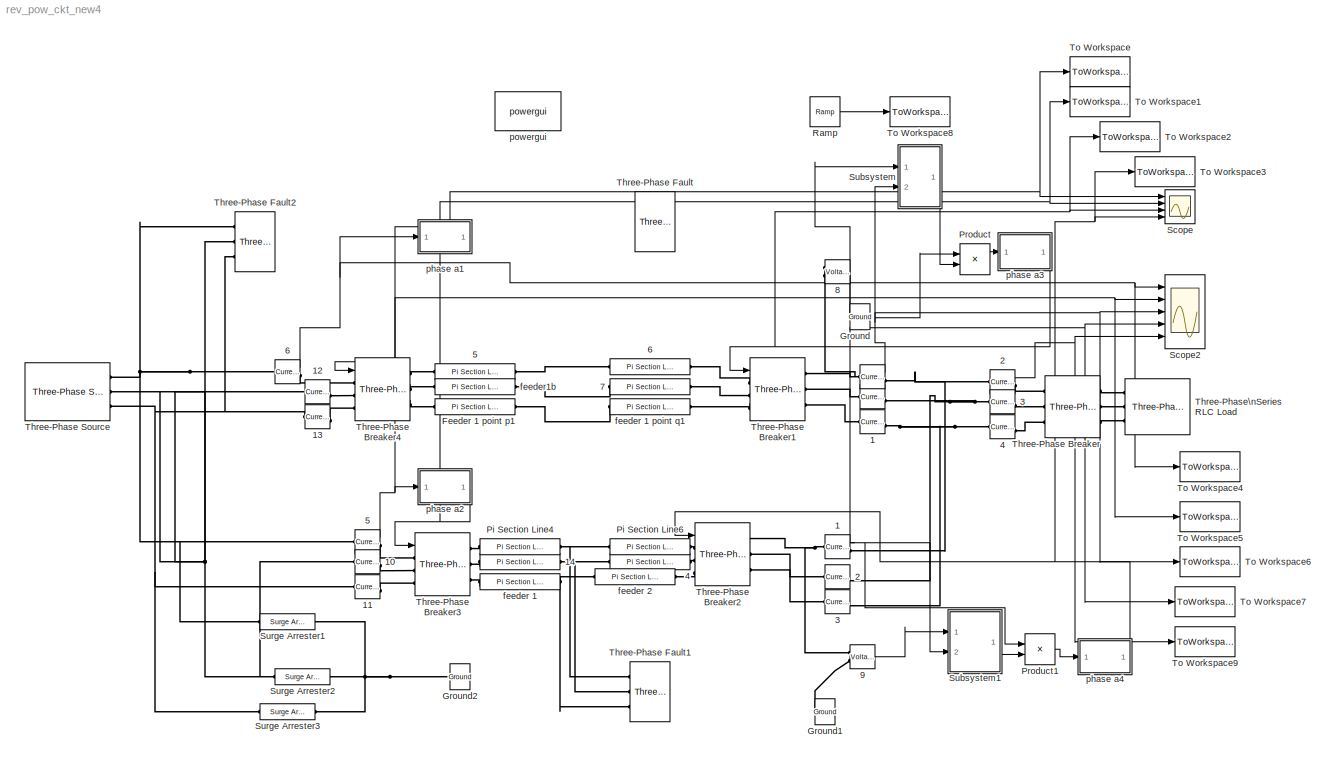
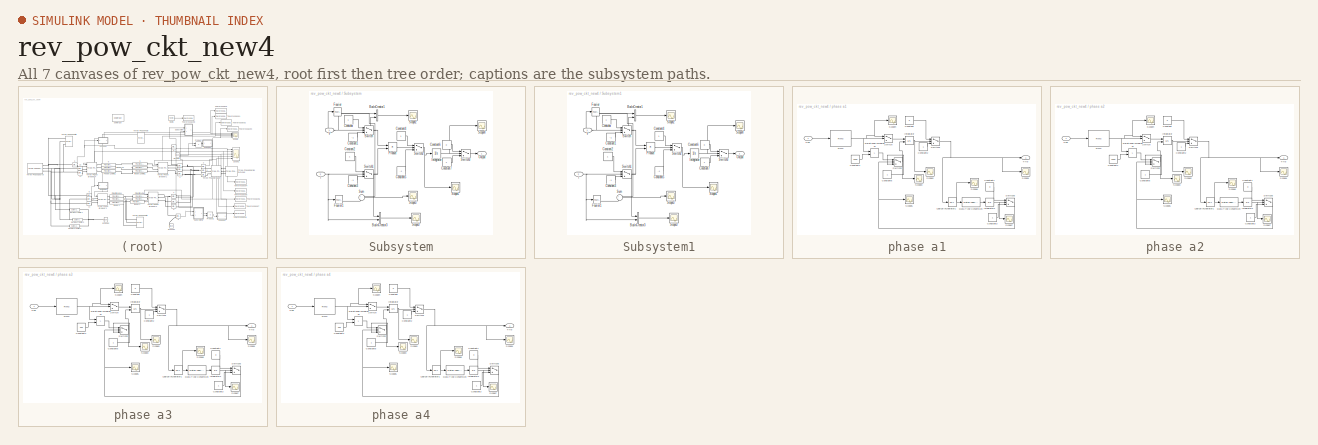
[diagram: thumbnail index - all 7 canvases of the model, root first then tree order]
MODEL rev_pow_ckt_new4
KIND model
BLOCK [Reference]    REF=powerlib/Measurements/Current Measurement
  FunctionWithSeparateData = off
  OutputType = Complex
  PSBequivalent = 0
  PhasorSimulation = off
  Ports = [0, 1, 0, 0, 0, 1, 1]
  RTWMemSecDataConstants = Inherit from model
  RTWMemSecDataInternal = Inherit from model
  RTWMemSecDataParameters = Inherit from model
  RTWMemSecFuncExecute = Inherit from model
  RTWMemSecFuncInitTerm = Inherit from model
  SID = 1
  ShowPortLabels = FromPortIcon
  SourceBlock = powerlib/Measurements/Current Measurement
  SourceProductBaseCode = PS
  SourceProductName = Simscape Electrical
  SourceType = Current Measurement
  SystemSampleTime = -1
BLOCK [Reference]     REF=powerlib/Measurements/Current Measurement
  FunctionWithSeparateData = off
  OutputType = Complex
  PSBequivalent = 0
  PhasorSimulation = off
  Ports = [0, 1, 0, 0, 0, 1, 1]
  RTWMemSecDataConstants = Inherit from model
  RTWMemSecDataInternal = Inherit from model
  RTWMemSecDataParameters = Inherit from model
  RTWMemSecFuncExecute = Inherit from model
  RTWMemSecFuncInitTerm = Inherit from model
  SID = 2
  ShowPortLabels = FromPortIcon
  SourceBlock = powerlib/Measurements/Current Measurement
  SourceProductBaseCode = PS
  SourceProductName = Simscape Electrical
  SourceType = Current Measurement
  SystemSampleTime = -1
BLOCK [Reference]   1  REF=powerlib/Measurements/Current Measurement
  FunctionWithSeparateData = off
  OutputType = Complex
  PSBequivalent = 0
  PhasorSimulation = off
  Ports = [0, 1, 0, 0, 0, 1, 1]
  RTWMemSecDataConstants = Inherit from model
  RTWMemSecDataInternal = Inherit from model
  RTWMemSecDataParameters = Inherit from model
  RTWMemSecFuncExecute = Inherit from model
  RTWMemSecFuncInitTerm = Inherit from model
  SID = 3
  ShowPortLabels = FromPortIcon
  SourceBlock = powerlib/Measurements/Current Measurement
  SourceProductBaseCode = PS
  SourceProductName = Simscape Electrical
  SourceType = Current Measurement
  SystemSampleTime = -1
BLOCK [Reference]   2  REF=powerlib/Measurements/Current Measurement
  FunctionWithSeparateData = off
  OutputType = Complex
  PSBequivalent = 0
  PhasorSimulation = off
  Ports = [0, 1, 0, 0, 0, 1, 1]
  RTWMemSecDataConstants = Inherit from model
  RTWMemSecDataInternal = Inherit from model
  RTWMemSecDataParameters = Inherit from model
  RTWMemSecFuncExecute = Inherit from model
  RTWMemSecFuncInitTerm = Inherit from model
  SID = 189
  ShowPortLabels = FromPortIcon
  SourceBlock = powerlib/Measurements/Current Measurement
  SourceProductBaseCode = PS
  SourceProductName = Simscape Electrical
  SourceType = Current Measurement
  SystemSampleTime = -1
BLOCK [Reference]   3  REF=powerlib/Measurements/Current Measurement
  FunctionWithSeparateData = off
  OutputType = Complex
  PSBequivalent = 0
  PhasorSimulation = off
  Ports = [0, 1, 0, 0, 0, 1, 1]
  RTWMemSecDataConstants = Inherit from model
  RTWMemSecDataInternal = Inherit from model
  RTWMemSecDataParameters = Inherit from model
  RTWMemSecFuncExecute = Inherit from model
  RTWMemSecFuncInitTerm = Inherit from model
  SID = 190
  ShowPortLabels = FromPortIcon
  SourceBlock = powerlib/Measurements/Current Measurement
  SourceProductBaseCode = PS
  SourceProductName = Simscape Electrical
  SourceType = Current Measurement
  SystemSampleTime = -1
BLOCK [Reference]   4  REF=powerlib/Measurements/Current Measurement
  FunctionWithSeparateData = off
  OutputType = Complex
  PSBequivalent = 0
  PhasorSimulation = off
  Ports = [0, 1, 0, 0, 0, 1, 1]
  RTWMemSecDataConstants = Inherit from model
  RTWMemSecDataInternal = Inherit from model
  RTWMemSecDataParameters = Inherit from model
  RTWMemSecFuncExecute = Inherit from model
  RTWMemSecFuncInitTerm = Inherit from model
  SID = 191
  ShowPortLabels = FromPortIcon
  SourceBlock = powerlib/Measurements/Current Measurement
  SourceProductBaseCode = PS
  SourceProductName = Simscape Electrical
  SourceType = Current Measurement
  SystemSampleTime = -1
BLOCK [Reference]   5  REF=powerlib/Measurements/Current Measurement
  FunctionWithSeparateData = off
  OutputType = Complex
  PSBequivalent = 0
  PhasorSimulation = off
  Ports = [0, 1, 0, 0, 0, 1, 1]
  RTWMemSecDataConstants = Inherit from model
  RTWMemSecDataInternal = Inherit from model
  RTWMemSecDataParameters = Inherit from model
  RTWMemSecFuncExecute = Inherit from model
  RTWMemSecFuncInitTerm = Inherit from model
  SID = 237
  ShowPortLabels = FromPortIcon
  SourceBlock = powerlib/Measurements/Current Measurement
  SourceProductBaseCode = PS
  SourceProductName = Simscape Electrical
  SourceType = Current Measurement
  SystemSampleTime = -1
BLOCK [Reference]   6  REF=powerlib/Measurements/Current Measurement
  FunctionWithSeparateData = off
  OutputType = Complex
  PSBequivalent = 0
  PhasorSimulation = off
  Ports = [0, 1, 0, 0, 0, 1, 1]
  RTWMemSecDataConstants = Inherit from model
  RTWMemSecDataInternal = Inherit from model
  RTWMemSecDataParameters = Inherit from model
  RTWMemSecFuncExecute = Inherit from model
  RTWMemSecFuncInitTerm = Inherit from model
  SID = 240
  ShowPortLabels = FromPortIcon
  SourceBlock = powerlib/Measurements/Current Measurement
  SourceProductBaseCode = PS
  SourceProductName = Simscape Electrical
  SourceType = Current Measurement
  SystemSampleTime = -1
BLOCK [Reference]  1  REF=powerlib/Measurements/Current Measurement
  FunctionWithSeparateData = off
  OutputType = Complex
  PSBequivalent = 0
  PhasorSimulation = off
  Ports = [0, 1, 0, 0, 0, 1, 1]
  RTWMemSecDataConstants = Inherit from model
  RTWMemSecDataInternal = Inherit from model
  RTWMemSecDataParameters = Inherit from model
  RTWMemSecFuncExecute = Inherit from model
  RTWMemSecFuncInitTerm = Inherit from model
  SID = 4
  ShowPortLabels = FromPortIcon
  SourceBlock = powerlib/Measurements/Current Measurement
  SourceProductBaseCode = PS
  SourceProductName = Simscape Electrical
  SourceType = Current Measurement
  SystemSampleTime = -1
BLOCK [Reference]  10  REF=powerlib/Measurements/Current Measurement
  FunctionWithSeparateData = off
  OutputType = Complex
  PSBequivalent = 0
  PhasorSimulation = off
  Ports = [0, 1, 0, 0, 0, 1, 1]
  RTWMemSecDataConstants = Inherit from model
  RTWMemSecDataInternal = Inherit from model
  RTWMemSecDataParameters = Inherit from model
  RTWMemSecFuncExecute = Inherit from model
  RTWMemSecFuncInitTerm = Inherit from model
  SID = 236
  ShowPortLabels = FromPortIcon
  SourceBlock = powerlib/Measurements/Current Measurement
  SourceProductBaseCode = PS
  SourceProductName = Simscape Electrical
  SourceType = Current Measurement
  SystemSampleTime = -1
BLOCK [Reference]  11  REF=powerlib/Measurements/Current Measurement
  FunctionWithSeparateData = off
  OutputType = Complex
  PSBequivalent = 0
  PhasorSimulation = off
  Ports = [0, 1, 0, 0, 0, 1, 1]
  RTWMemSecDataConstants = Inherit from model
  RTWMemSecDataInternal = Inherit from model
  RTWMemSecDataParameters = Inherit from model
  RTWMemSecFuncExecute = Inherit from model
  RTWMemSecFuncInitTerm = Inherit from model
  SID = 238
  ShowPortLabels = FromPortIcon
  SourceBlock = powerlib/Measurements/Current Measurement
  SourceProductBaseCode = PS
  SourceProductName = Simscape Electrical
  SourceType = Current Measurement
  SystemSampleTime = -1
BLOCK [Reference]  12  REF=powerlib/Measurements/Current Measurement
  FunctionWithSeparateData = off
  OutputType = Complex
  PSBequivalent = 0
  PhasorSimulation = off
  Ports = [0, 1, 0, 0, 0, 1, 1]
  RTWMemSecDataConstants = Inherit from model
  RTWMemSecDataInternal = Inherit from model
  RTWMemSecDataParameters = Inherit from model
  RTWMemSecFuncExecute = Inherit from model
  RTWMemSecFuncInitTerm = Inherit from model
  SID = 241
  ShowPortLabels = FromPortIcon
  SourceBlock = powerlib/Measurements/Current Measurement
  SourceProductBaseCode = PS
  SourceProductName = Simscape Electrical
  SourceType = Current Measurement
  SystemSampleTime = -1
BLOCK [Reference]  13  REF=powerlib/Measurements/Current Measurement
  FunctionWithSeparateData = off
  OutputType = Complex
  PSBequivalent = 0
  PhasorSimulation = off
  Ports = [0, 1, 0, 0, 0, 1, 1]
  RTWMemSecDataConstants = Inherit from model
  RTWMemSecDataInternal = Inherit from model
  RTWMemSecDataParameters = Inherit from model
  RTWMemSecFuncExecute = Inherit from model
  RTWMemSecFuncInitTerm = Inherit from model
  SID = 242
  ShowPortLabels = FromPortIcon
  SourceBlock = powerlib/Measurements/Current Measurement
  SourceProductBaseCode = PS
  SourceProductName = Simscape Electrical
  SourceType = Current Measurement
  SystemSampleTime = -1
BLOCK [Reference]  14  REF=powerlib/Elements/Pi Section Line
  AttributesFormatString = \\n
  Capacitance = 8.6e-9
  Frequency = 60
  Inductance = 2e-3
  LConnTagsString = __new0
  LeftPortType = p1
  Length = 25
  Measurements = None
  PhysicalDomain = powersysdomain
  PiSections = 1
  Ports = [0, 0, 0, 0, 0, 1, 1]
  RConnTagsString = __new0
  Resistance = 0.2568
  RightPortType = p1
  SID = 981
  SourceBlock = powerlib/Elements/Pi Section Line
  SourceProductBaseCode = PS
  SourceProductName = Simscape Electrical
  SourceType = Pi Section Line
  SubClassName = unknown
BLOCK [Reference]  2  REF=powerlib/Measurements/Current Measurement
  FunctionWithSeparateData = off
  OutputType = Complex
  PSBequivalent = 0
  PhasorSimulation = off
  Ports = [0, 1, 0, 0, 0, 1, 1]
  RTWMemSecDataConstants = Inherit from model
  RTWMemSecDataInternal = Inherit from model
  RTWMemSecDataParameters = Inherit from model
  RTWMemSecFuncExecute = Inherit from model
  RTWMemSecFuncInitTerm = Inherit from model
  SID = 5
  ShowPortLabels = FromPortIcon
  SourceBlock = powerlib/Measurements/Current Measurement
  SourceProductBaseCode = PS
  SourceProductName = Simscape Electrical
  SourceType = Current Measurement
  SystemSampleTime = -1
BLOCK [Reference]  3  REF=powerlib/Measurements/Current Measurement
  FunctionWithSeparateData = off
  OutputType = Complex
  PSBequivalent = 0
  PhasorSimulation = off
  Ports = [0, 1, 0, 0, 0, 1, 1]
  RTWMemSecDataConstants = Inherit from model
  RTWMemSecDataInternal = Inherit from model
  RTWMemSecDataParameters = Inherit from model
  RTWMemSecFuncExecute = Inherit from model
  RTWMemSecFuncInitTerm = Inherit from model
  SID = 6
  ShowPortLabels = FromPortIcon
  SourceBlock = powerlib/Measurements/Current Measurement
  SourceProductBaseCode = PS
  SourceProductName = Simscape Electrical
  SourceType = Current Measurement
  SystemSampleTime = -1
BLOCK [Reference]  4  REF=powerlib/Elements/Pi Section Line
  AttributesFormatString = \\n
  Capacitance = 8.6e-9
  Frequency = 60
  Inductance = 2e-3
  LConnTagsString = __new0
  LeftPortType = p1
  Length = 25
  Measurements = None
  PhysicalDomain = powersysdomain
  PiSections = 1
  Ports = [0, 0, 0, 0, 0, 1, 1]
  RConnTagsString = __new0
  Resistance = 0.2568
  RightPortType = p1
  SID = 7
  SourceBlock = powerlib/Elements/Pi Section Line
  SourceProductBaseCode = PS
  SourceProductName = Simscape Electrical
  SourceType = Pi Section Line
  SubClassName = unknown
BLOCK [Reference]  5  REF=powerlib/Elements/Pi Section Line
  AttributesFormatString = \\n
  Capacitance = 8.6e-9
  Frequency = 60
  Inductance = 2e-3
  LConnTagsString = __new0
  LeftPortType = p1
  Length = 25
  Measurements = None
  PhysicalDomain = powersysdomain
  PiSections = 1
  Ports = [0, 0, 0, 0, 0, 1, 1]
  RConnTagsString = __new0
  Resistance = 0.2568
  RightPortType = p1
  SID = 8
  SourceBlock = powerlib/Elements/Pi Section Line
  SourceProductBaseCode = PS
  SourceProductName = Simscape Electrical
  SourceType = Pi Section Line
  SubClassName = unknown
BLOCK [Reference]  6  REF=powerlib/Elements/Pi Section Line
  AttributesFormatString = \\n
  Capacitance = 8.6e-9
  Frequency = 60
  Inductance = 2e-3
  LConnTagsString = __new0
  LeftPortType = p1
  Length = 25
  Measurements = None
  PhysicalDomain = powersysdomain
  PiSections = 1
  Ports = [0, 0, 0, 0, 0, 1, 1]
  RConnTagsString = __new0
  Resistance = 0.2568
  RightPortType = p1
  SID = 9
  SourceBlock = powerlib/Elements/Pi Section Line
  SourceProductBaseCode = PS
  SourceProductName = Simscape Electrical
  SourceType = Pi Section Line
  SubClassName = unknown
BLOCK [Reference]  7  REF=powerlib/Elements/Pi Section Line
  AttributesFormatString = \\n
  Capacitance = 8.6e-9
  Frequency = 60
  Inductance = 2e-3
  LConnTagsString = __new0
  LeftPortType = p1
  Length = 25
  Measurements = None
  PhysicalDomain = powersysdomain
  PiSections = 1
  Ports = [0, 0, 0, 0, 0, 1, 1]
  RConnTagsString = __new0
  Resistance = 0.2568
  RightPortType = p1
  SID = 10
  SourceBlock = powerlib/Elements/Pi Section Line
  SourceProductBaseCode = PS
  SourceProductName = Simscape Electrical
  SourceType = Pi Section Line
  SubClassName = unknown
BLOCK [Reference]  8  REF=powerlib/Measurements/Voltage Measurement
  FunctionWithSeparateData = off
  OutputType = Complex
  PSBequivalent = 0
  PhasorSimulation = off
  Ports = [0, 1, 0, 0, 0, 2]
  RTWMemSecDataConstants = Inherit from model
  RTWMemSecDataInternal = Inherit from model
  RTWMemSecDataParameters = Inherit from model
  RTWMemSecFuncExecute = Inherit from model
  RTWMemSecFuncInitTerm = Inherit from model
  SID = 11
  ShowPortLabels = FromPortIcon
  SourceBlock = powerlib/Measurements/Voltage Measurement
  SourceProductBaseCode = PS
  SourceProductName = Simscape Electrical
  SourceType = Voltage Measurement
  SystemSampleTime = -1
BLOCK [Reference]  9  REF=powerlib/Measurements/Voltage Measurement
  FunctionWithSeparateData = off
  OutputType = Complex
  PSBequivalent = 0
  PhasorSimulation = off
  Ports = [0, 1, 0, 0, 0, 2]
  RTWMemSecDataConstants = Inherit from model
  RTWMemSecDataInternal = Inherit from model
  RTWMemSecDataParameters = Inherit from model
  RTWMemSecFuncExecute = Inherit from model
  RTWMemSecFuncInitTerm = Inherit from model
  SID = 12
  ShowPortLabels = FromPortIcon
  SourceBlock = powerlib/Measurements/Voltage Measurement
  SourceProductBaseCode = PS
  SourceProductName = Simscape Electrical
  SourceType = Voltage Measurement
  SystemSampleTime = -1
BLOCK [Reference] Feeder 1 point p1  REF=powerlib/Elements/Pi Section Line
  AttributesFormatString = \\n
  Capacitance = 8.6e-9
  Frequency = 60
  Inductance = 2e-3
  LConnTagsString = __new0
  LeftPortType = p1
  Length = 25
  Measurements = None
  PhysicalDomain = powersysdomain
  PiSections = 1
  Ports = [0, 0, 0, 0, 0, 1, 1]
  RConnTagsString = __new0
  Resistance = 0.2568
  RightPortType = p1
  SID = 16
  SourceBlock = powerlib/Elements/Pi Section Line
  SourceProductBaseCode = PS
  SourceProductName = Simscape Electrical
  SourceType = Pi Section Line
  SubClassName = unknown
BLOCK [Reference] Ground  REF=powerlib/Elements/Ground
  LConnTagsString = a
  LeftPortType = p1
  PhysicalDomain = powersysdomain
  Ports = [0, 0, 0, 0, 0, 1]
  RightPortType = p1
  SID = 17
  SourceBlock = powerlib/Elements/Ground
  SourceProductBaseCode = PS
  SourceProductName = Simscape Electrical
  SourceType = Ground
  SubClassName = unknown
BLOCK [Reference] Ground1  REF=powerlib/Elements/Ground
  LConnTagsString = a
  LeftPortType = p1
  PhysicalDomain = powersysdomain
  Ports = [0, 0, 0, 0, 0, 1]
  RightPortType = p1
  SID = 18
  SourceBlock = powerlib/Elements/Ground
  SourceProductBaseCode = PS
  SourceProductName = Simscape Electrical
  SourceType = Ground
  SubClassName = unknown
BLOCK [Reference] Ground2  REF=powerlib/Elements/Ground
  LConnTagsString = a
  LeftPortType = p1
  PhysicalDomain = powersysdomain
  Ports = [0, 0, 0, 0, 0, 1]
  RightPortType = p1
  SID = 881
  SourceBlock = powerlib/Elements/Ground
  SourceProductBaseCode = PS
  SourceProductName = Simscape Electrical
  SourceType = Ground
  SubClassName = unknown
BLOCK [Reference] Pi Section Line4  REF=powerlib/Elements/Pi Section Line
  AttributesFormatString = \\n
  Capacitance = 8.6e-9
  Frequency = 60
  Inductance = 2e-3
  LConnTagsString = __new0
  LeftPortType = p1
  Length = 25
  Measurements = None
  PhysicalDomain = powersysdomain
  PiSections = 1
  Ports = [0, 0, 0, 0, 0, 1, 1]
  RConnTagsString = __new0
  Resistance = 0.2568
  RightPortType = p1
  SID = 982
  SourceBlock = powerlib/Elements/Pi Section Line
  SourceProductBaseCode = PS
  SourceProductName = Simscape Electrical
  SourceType = Pi Section Line
  SubClassName = unknown
BLOCK [Reference] Pi Section Line6  REF=powerlib/Elements/Pi Section Line
  AttributesFormatString = \\n
  Capacitance = 8.6e-9
  Frequency = 60
  Inductance = 2e-3
  LConnTagsString = __new0
  LeftPortType = p1
  Length = 25
  Measurements = None
  PhysicalDomain = powersysdomain
  PiSections = 1
  Ports = [0, 0, 0, 0, 0, 1, 1]
  RConnTagsString = __new0
  Resistance = 0.2568
  RightPortType = p1
  SID = 19
  SourceBlock = powerlib/Elements/Pi Section Line
  SourceProductBaseCode = PS
  SourceProductName = Simscape Electrical
  SourceType = Pi Section Line
  SubClassName = unknown
BLOCK [Product] Product
  InputSameDT = off
  OutDataTypeStr = Inherit: Inherit via internal rule
  Ports = [2, 1]
  SID = 743
  SaturateOnIntegerOverflow = off
BLOCK [Product] Product1
  InputSameDT = off
  OutDataTypeStr = Inherit: Inherit via internal rule
  Ports = [2, 1]
  SID = 908
  SaturateOnIntegerOverflow = off
BLOCK [Reference] Ramp  REF=simulink/Sources/Ramp
  FunctionWithSeparateData = off
  Ports = [0, 1]
  RTWMemSecDataConstants = Inherit from model
  RTWMemSecDataInternal = Inherit from model
  RTWMemSecDataParameters = Inherit from model
  RTWMemSecFuncExecute = Inherit from model
  RTWMemSecFuncInitTerm = Inherit from model
  SID = 974
  ShowPortLabels = FromPortIcon
  SourceBlock = simulink/Sources/Ramp
  SourceProductBaseCode = SL
  SourceProductName = Simulink
  SourceType = Ramp
  SystemSampleTime = -1
  VectorParams1D = on
  X0 = 0
  slope = 1
  start = 0
BLOCK [Scope] Scope
  Floating = off
  NumInputPorts = 4
  Ports = [4]
  SID = 100
  ScopeSpecificationString = C++SS(StrPVP('Location','[5, 52, 1029, 733]'),StrPVP('Open','off'),StrPVP('TickLabels','on'),MxPVP('AxesTitles',54,'struct(''axes1'',''%<SignalLabel>'',''axes2'',''%<SignalLabel>'',''axes3'',''%<SignalLabel>'',''axes4'',''%<SignalLabel>'')'),StrPVP('TimeRange','2.5'),StrPVP('YMin','0.95~0.95~0.95~-1'),StrPVP('YMax','1.05~1.05~1.05~1'),StrPVP('DataFormat','StructureWithTime'),StrPVP('BlockParamSamp...<+107ch>
BLOCK [Scope] Scope2
  Floating = off
  NumInputPorts = 5
  Ports = [5]
  SID = 935
  ScopeSpecificationString = C++SS(StrPVP('Location','[5, 52, 1029, 733]'),StrPVP('Open','off'),StrPVP('TickLabels','on'),MxPVP('AxesTitles',54,'struct(''axes1'',''%<SignalLabel>'',''axes2'',''%<SignalLabel>'',''axes3'',''%<SignalLabel>'',''axes4'',''%<SignalLabel>'',''axes5'',''%<SignalLabel>'')'),StrPVP('TimeRange','1.1             '),StrPVP('YMin','-3000~-7500~-3000~-2000~-750'),StrPVP('YMax','3000~7500~3000~2000~750'),Str...<+199ch>
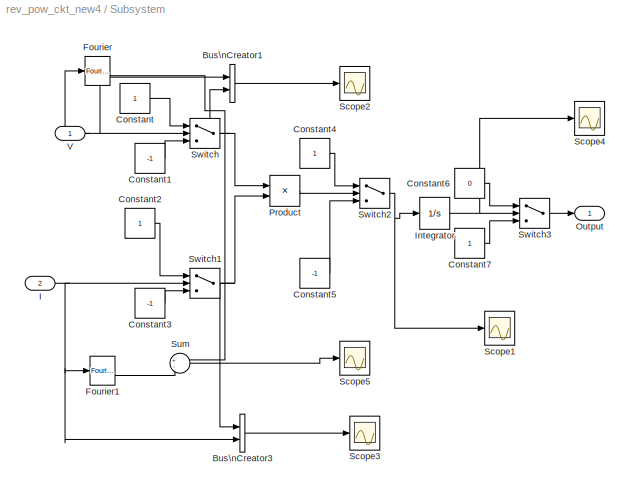
BLOCK [SubSystem] Subsystem
  Ports = [2, 1]
  RequestExecContextInheritance = off
  SID = 108
BLOCK [BusCreator] Subsystem/Bus\nCreator1
  DisplayOption = bar
  InheritFromInputs = on
  Inputs = 2
  Ports = [2, 1]
  SID = 111
BLOCK [BusCreator] Subsystem/Bus\nCreator3
  DisplayOption = bar
  InheritFromInputs = on
  Inputs = 2
  Ports = [2, 1]
  SID = 113
BLOCK [Constant] Subsystem/Constant
  SID = 114
BLOCK [Constant] Subsystem/Constant1
  SID = 115
  Value = -1
BLOCK [Constant] Subsystem/Constant2
  SID = 116
BLOCK [Constant] Subsystem/Constant3
  SID = 117
  Value = -1
BLOCK [Constant] Subsystem/Constant4
  SID = 118
BLOCK [Constant] Subsystem/Constant5
  SID = 119
  Value = -1
BLOCK [Constant] Subsystem/Constant6
  SID = 120
  Value = 0
BLOCK [Constant] Subsystem/Constant7
  SID = 121
BLOCK [Reference] Subsystem/Fourier  REF=powerlib_extras/Measurements/Fourier
  FunctionWithSeparateData = off
  Ports = [1, 2]
  RTWMemSecDataConstants = Inherit from model
  RTWMemSecDataInternal = Inherit from model
  RTWMemSecDataParameters = Inherit from model
  RTWMemSecFuncExecute = Inherit from model
  RTWMemSecFuncInitTerm = Inherit from model
  SID = 196
  ShowPortLabels = FromPortIcon
  SourceBlock = powerlib_extras/Measurements/Fourier
  SourceProductBaseCode = PS
  SourceProductName = Simscape Electrical
  SourceType = Fourier analyser
  SystemSampleTime = -1
  f1 = 60
  n = 1
BLOCK [Reference] Subsystem/Fourier1  REF=powerlib_extras/Measurements/Fourier
  FunctionWithSeparateData = off
  Ports = [1, 2]
  RTWMemSecDataConstants = Inherit from model
  RTWMemSecDataInternal = Inherit from model
  RTWMemSecDataParameters = Inherit from model
  RTWMemSecFuncExecute = Inherit from model
  RTWMemSecFuncInitTerm = Inherit from model
  SID = 197
  ShowPortLabels = FromPortIcon
  SourceBlock = powerlib_extras/Measurements/Fourier
  SourceProductBaseCode = PS
  SourceProductName = Simscape Electrical
  SourceType = Fourier analyser
  SystemSampleTime = -1
  f1 = 60
  n = 1
BLOCK [Inport] Subsystem/I
  IconDisplay = Port number
  Port = 2
  SID = 110
BLOCK [Integrator] Subsystem/Integrator
  LimitOutput = on
  Ports = [1, 1]
  SID = 123
  UpperSaturationLimit = 0
BLOCK [Outport] Subsystem/Output
  IconDisplay = Port number
  SID = 133
BLOCK [Product] Subsystem/Product
  InputSameDT = off
  OutDataTypeStr = Inherit: Inherit via internal rule
  Ports = [2, 1]
  SID = 124
  SaturateOnIntegerOverflow = off
BLOCK [Scope] Subsystem/Scope1
  Floating = off
  NumInputPorts = 1
  Ports = [1]
  SID = 125
  ScopeSpecificationString = C++SS(StrPVP('Location','[103, 391, 427, 630]'),StrPVP('Open','off'),StrPVP('ZoomMode','xonly'),MxPVP('AxesTitles',54,'struct(''axes1'',''%<SignalLabel>'')'),StrPVP('SaveName','ScopeData1'),StrPVP('DataFormat','StructureWithTime'),StrPVP('BlockParamSampleTime','0'),StrPVP('LimitDataPoints','on'),StrPVP('Decimation','1'),StrPVP('BlockParamSampleInput','off'))
BLOCK [Scope] Subsystem/Scope2
  Floating = off
  NumInputPorts = 1
  Ports = [1]
  SID = 126
  ScopeSpecificationString = C++SS(StrPVP('Location','[83, 435, 407, 674]'),StrPVP('Open','off'),MxPVP('AxesTitles',54,'struct(''axes1'',''%<SignalLabel>'')'),StrPVP('TimeRange','10'),StrPVP('YMin','0'),StrPVP('YMax','1'),StrPVP('SaveName','ScopeData2'),StrPVP('DataFormat','StructureWithTime'),StrPVP('BlockParamSampleTime','0'),StrPVP('LimitDataPoints','on'),StrPVP('Decimation','1'),StrPVP('BlockParamSampleInput','off'))
BLOCK [Scope] Subsystem/Scope3
  Floating = off
  NumInputPorts = 1
  Ports = [1]
  SID = 127
  ScopeSpecificationString = C++SS(StrPVP('Location','[188, 390, 512, 629]'),StrPVP('Open','off'),StrPVP('ZoomMode','yonly'),MxPVP('AxesTitles',54,'struct(''axes1'',''%<SignalLabel>'')'),StrPVP('TimeRange','10'),StrPVP('YMin','0'),StrPVP('YMax','1'),StrPVP('SaveName','ScopeData3'),StrPVP('DataFormat','StructureWithTime'),StrPVP('BlockParamSampleTime','0'),StrPVP('LimitDataPoints','on'),StrPVP('Decimation','1'),StrPVP('BlockPa...<+23ch>
BLOCK [Scope] Subsystem/Scope4
  Floating = off
  NumInputPorts = 1
  Ports = [1]
  SID = 186
  ScopeSpecificationString = C++SS(StrPVP('Location','[541, 92, 865, 333]'),StrPVP('Open','off'),StrPVP('ZoomMode','xonly'),MxPVP('AxesTitles',54,'struct(''axes1'',''%<SignalLabel>'')'),StrPVP('TimeRange','1.1             '),StrPVP('YMin','-0.002'),StrPVP('YMax','0'),StrPVP('SaveName','ScopeData4'),StrPVP('DataFormat','StructureWithTime'),StrPVP('BlockParamSampleTime','0'),StrPVP('LimitDataPoints','on'),StrPVP('Decimation','1...<+41ch>
BLOCK [Scope] Subsystem/Scope5
  Floating = off
  NumInputPorts = 1
  Ports = [1]
  SID = 199
  ScopeSpecificationString = C++SS(StrPVP('Location','[169, 362, 493, 601]'),StrPVP('Open','off'),StrPVP('ZoomMode','yonly'),MxPVP('AxesTitles',54,'struct(''axes1'',''%<SignalLabel>'')'),StrPVP('TimeRange','2.1             '),StrPVP('YMin','-200'),StrPVP('YMax','200'),StrPVP('SaveName','ScopeData7'),StrPVP('DataFormat','StructureWithTime'),StrPVP('BlockParamSampleTime','0'),StrPVP('LimitDataPoints','on'),StrPVP('Decimation','...<+42ch>
BLOCK [Sum] Subsystem/Sum
  IconShape = round
  InputSameDT = off
  Inputs = +-
  OutDataTypeStr = Inherit: Inherit via internal rule
  Ports = [2, 1]
  SID = 198
  SaturateOnIntegerOverflow = off
BLOCK [Switch] Subsystem/Switch
  Criteria = u2 > Threshold
  InputSameDT = off
  SID = 128
  SaturateOnIntegerOverflow = off
BLOCK [Switch] Subsystem/Switch1
  Criteria = u2 > Threshold
  InputSameDT = off
  SID = 129
  SaturateOnIntegerOverflow = off
BLOCK [Switch] Subsystem/Switch2
  Criteria = u2 > Threshold
  InputSameDT = off
  SID = 130
  SaturateOnIntegerOverflow = off
BLOCK [Switch] Subsystem/Switch3
  Criteria = u2 > Threshold
  InputSameDT = off
  SID = 131
  SaturateOnIntegerOverflow = off
  Threshold = -0.01
BLOCK [Inport] Subsystem/V
  IconDisplay = Port number
  SID = 109
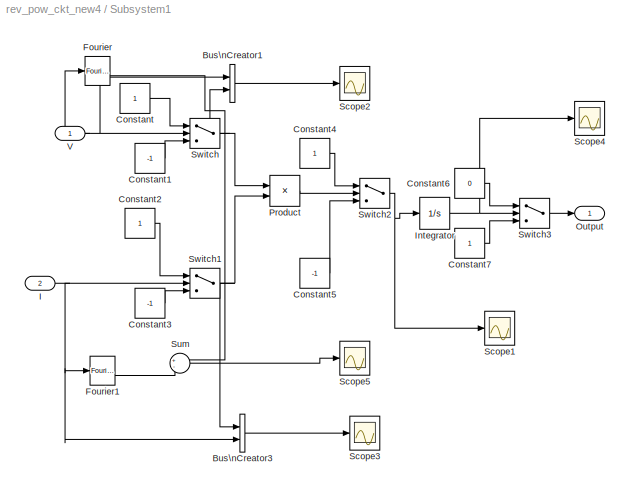
BLOCK [SubSystem] Subsystem1
  Ports = [2, 1]
  RequestExecContextInheritance = off
  SID = 1018
BLOCK [BusCreator] Subsystem1/Bus\nCreator1
  DisplayOption = bar
  InheritFromInputs = on
  Inputs = 2
  Ports = [2, 1]
  SID = 1021
BLOCK [BusCreator] Subsystem1/Bus\nCreator3
  DisplayOption = bar
  InheritFromInputs = on
  Inputs = 2
  Ports = [2, 1]
  SID = 1023
BLOCK [Constant] Subsystem1/Constant
  SID = 1024
BLOCK [Constant] Subsystem1/Constant1
  SID = 1025
  Value = -1
BLOCK [Constant] Subsystem1/Constant2
  SID = 1026
BLOCK [Constant] Subsystem1/Constant3
  SID = 1027
  Value = -1
BLOCK [Constant] Subsystem1/Constant4
  SID = 1028
BLOCK [Constant] Subsystem1/Constant5
  SID = 1029
  Value = -1
BLOCK [Constant] Subsystem1/Constant6
  SID = 1030
  Value = 0
BLOCK [Constant] Subsystem1/Constant7
  SID = 1031
BLOCK [Reference] Subsystem1/Fourier  REF=powerlib_extras/Measurements/Fourier
  FunctionWithSeparateData = off
  Ports = [1, 2]
  RTWMemSecDataConstants = Inherit from model
  RTWMemSecDataInternal = Inherit from model
  RTWMemSecDataParameters = Inherit from model
  RTWMemSecFuncExecute = Inherit from model
  RTWMemSecFuncInitTerm = Inherit from model
  SID = 1032
  ShowPortLabels = FromPortIcon
  SourceBlock = powerlib_extras/Measurements/Fourier
  SourceProductBaseCode = PS
  SourceProductName = Simscape Electrical
  SourceType = Fourier analyser
  SystemSampleTime = -1
  f1 = 60
  n = 1
BLOCK [Reference] Subsystem1/Fourier1  REF=powerlib_extras/Measurements/Fourier
  FunctionWithSeparateData = off
  Ports = [1, 2]
  RTWMemSecDataConstants = Inherit from model
  RTWMemSecDataInternal = Inherit from model
  RTWMemSecDataParameters = Inherit from model
  RTWMemSecFuncExecute = Inherit from model
  RTWMemSecFuncInitTerm = Inherit from model
  SID = 1033
  ShowPortLabels = FromPortIcon
  SourceBlock = powerlib_extras/Measurements/Fourier
  SourceProductBaseCode = PS
  SourceProductName = Simscape Electrical
  SourceType = Fourier analyser
  SystemSampleTime = -1
  f1 = 60
  n = 1
BLOCK [Inport] Subsystem1/I
  IconDisplay = Port number
  Port = 2
  SID = 1020
BLOCK [Integrator] Subsystem1/Integrator
  LimitOutput = on
  Ports = [1, 1]
  SID = 1034
  UpperSaturationLimit = 0
BLOCK [Outport] Subsystem1/Output
  IconDisplay = Port number
  SID = 1047
BLOCK [Product] Subsystem1/Product
  InputSameDT = off
  OutDataTypeStr = Inherit: Inherit via internal rule
  Ports = [2, 1]
  SID = 1035
  SaturateOnIntegerOverflow = off
BLOCK [Scope] Subsystem1/Scope1
  Floating = off
  NumInputPorts = 1
  Ports = [1]
  SID = 1036
  ScopeSpecificationString = C++SS(StrPVP('Location','[103, 391, 427, 630]'),StrPVP('Open','off'),StrPVP('ZoomMode','xonly'),MxPVP('AxesTitles',54,'struct(''axes1'',''%<SignalLabel>'')'),StrPVP('SaveName','ScopeData1'),StrPVP('DataFormat','StructureWithTime'),StrPVP('BlockParamSampleTime','0'),StrPVP('LimitDataPoints','on'),StrPVP('Decimation','1'),StrPVP('BlockParamSampleInput','off'))
BLOCK [Scope] Subsystem1/Scope2
  Floating = off
  NumInputPorts = 1
  Ports = [1]
  SID = 1037
  ScopeSpecificationString = C++SS(StrPVP('Location','[83, 435, 407, 674]'),StrPVP('Open','off'),MxPVP('AxesTitles',54,'struct(''axes1'',''%<SignalLabel>'')'),StrPVP('TimeRange','10'),StrPVP('YMin','0'),StrPVP('YMax','1'),StrPVP('SaveName','ScopeData2'),StrPVP('DataFormat','StructureWithTime'),StrPVP('BlockParamSampleTime','0'),StrPVP('LimitDataPoints','on'),StrPVP('Decimation','1'),StrPVP('BlockParamSampleInput','off'))
BLOCK [Scope] Subsystem1/Scope3
  Floating = off
  NumInputPorts = 1
  Ports = [1]
  SID = 1038
  ScopeSpecificationString = C++SS(StrPVP('Location','[188, 390, 512, 629]'),StrPVP('Open','off'),StrPVP('ZoomMode','yonly'),MxPVP('AxesTitles',54,'struct(''axes1'',''%<SignalLabel>'')'),StrPVP('TimeRange','10'),StrPVP('YMin','0'),StrPVP('YMax','1'),StrPVP('SaveName','ScopeData3'),StrPVP('DataFormat','StructureWithTime'),StrPVP('BlockParamSampleTime','0'),StrPVP('LimitDataPoints','on'),StrPVP('Decimation','1'),StrPVP('BlockPa...<+23ch>
BLOCK [Scope] Subsystem1/Scope4
  Floating = off
  NumInputPorts = 1
  Ports = [1]
  SID = 1039
  ScopeSpecificationString = C++SS(StrPVP('Location','[541, 92, 865, 333]'),StrPVP('Open','off'),StrPVP('ZoomMode','xonly'),MxPVP('AxesTitles',54,'struct(''axes1'',''%<SignalLabel>'')'),StrPVP('TimeRange','1.1             '),StrPVP('YMin','-0.03'),StrPVP('YMax','-0.0075'),StrPVP('SaveName','ScopeData4'),StrPVP('DataFormat','StructureWithTime'),StrPVP('BlockParamSampleTime','0'),StrPVP('LimitDataPoints','on'),StrPVP('Decimatio...<+46ch>
BLOCK [Scope] Subsystem1/Scope5
  Floating = off
  NumInputPorts = 1
  Ports = [1]
  SID = 1040
  ScopeSpecificationString = C++SS(StrPVP('Location','[169, 362, 493, 601]'),StrPVP('Open','off'),StrPVP('ZoomMode','yonly'),MxPVP('AxesTitles',54,'struct(''axes1'',''%<SignalLabel>'')'),StrPVP('TimeRange','2.1             '),StrPVP('YMin','-200'),StrPVP('YMax','175'),StrPVP('SaveName','ScopeData7'),StrPVP('DataFormat','StructureWithTime'),StrPVP('BlockParamSampleTime','0'),StrPVP('LimitDataPoints','on'),StrPVP('Decimation','...<+42ch>
BLOCK [Sum] Subsystem1/Sum
  IconShape = round
  InputSameDT = off
  Inputs = +-
  OutDataTypeStr = Inherit: Inherit via internal rule
  Ports = [2, 1]
  SID = 1041
  SaturateOnIntegerOverflow = off
BLOCK [Switch] Subsystem1/Switch
  Criteria = u2 > Threshold
  InputSameDT = off
  SID = 1042
  SaturateOnIntegerOverflow = off
BLOCK [Switch] Subsystem1/Switch1
  Criteria = u2 > Threshold
  InputSameDT = off
  SID = 1043
  SaturateOnIntegerOverflow = off
BLOCK [Switch] Subsystem1/Switch2
  Criteria = u2 > Threshold
  InputSameDT = off
  SID = 1044
  SaturateOnIntegerOverflow = off
BLOCK [Switch] Subsystem1/Switch3
  Criteria = u2 > Threshold
  InputSameDT = off
  SID = 1045
  SaturateOnIntegerOverflow = off
  Threshold = -0.01
BLOCK [Inport] Subsystem1/V
  IconDisplay = Port number
  SID = 1019
BLOCK [Reference] Surge Arrester1  REF=powerlib/Elements/Surge Arrester
  BreakLoop = off
  Columns = 2
  FunctionWithSeparateData = off
  Measurements = None
  MoreParameters = off
  Ports = [0, 0, 0, 0, 0, 1, 1]
  ProtectionVoltage = 300e+03
  RTWMemSecDataConstants = Inherit from model
  RTWMemSecDataInternal = Inherit from model
  RTWMemSecDataParameters = Inherit from model
  RTWMemSecFuncExecute = Inherit from model
  RTWMemSecFuncInitTerm = Inherit from model
  ReferenceCurrent = 500
  SID = 878
  Segment1 = [.955 50]
  Segment2 = [1.0 25]
  Segment3 = [.9915 16.5]
  ShowPortLabels = FromPortIcon
  SourceBlock = powerlib/Elements/Surge Arrester
  SourceProductBaseCode = PS
  SourceProductName = Simscape Electrical
  SourceType = Surge Arrester
  SystemSampleTime = -1
BLOCK [Reference] Surge Arrester2  REF=powerlib/Elements/Surge Arrester
  BreakLoop = off
  Columns = 2
  FunctionWithSeparateData = off
  Measurements = None
  MoreParameters = off
  Ports = [0, 0, 0, 0, 0, 1, 1]
  ProtectionVoltage = 300e+03
  RTWMemSecDataConstants = Inherit from model
  RTWMemSecDataInternal = Inherit from model
  RTWMemSecDataParameters = Inherit from model
  RTWMemSecFuncExecute = Inherit from model
  RTWMemSecFuncInitTerm = Inherit from model
  ReferenceCurrent = 500
  SID = 938
  Segment1 = [.955 50]
  Segment2 = [1.0 25]
  Segment3 = [.9915 16.5]
  ShowPortLabels = FromPortIcon
  SourceBlock = powerlib/Elements/Surge Arrester
  SourceProductBaseCode = PS
  SourceProductName = Simscape Electrical
  SourceType = Surge Arrester
  SystemSampleTime = -1
BLOCK [Reference] Surge Arrester3  REF=powerlib/Elements/Surge Arrester
  BreakLoop = off
  Columns = 2
  FunctionWithSeparateData = off
  Measurements = None
  MoreParameters = off
  Ports = [0, 0, 0, 0, 0, 1, 1]
  ProtectionVoltage = 300e+03
  RTWMemSecDataConstants = Inherit from model
  RTWMemSecDataInternal = Inherit from model
  RTWMemSecDataParameters = Inherit from model
  RTWMemSecFuncExecute = Inherit from model
  RTWMemSecFuncInitTerm = Inherit from model
  ReferenceCurrent = 500
  SID = 939
  Segment1 = [.955 50]
  Segment2 = [1.0 25]
  Segment3 = [.9915 16.5]
  ShowPortLabels = FromPortIcon
  SourceBlock = powerlib/Elements/Surge Arrester
  SourceProductBaseCode = PS
  SourceProductName = Simscape Electrical
  SourceType = Surge Arrester
  SystemSampleTime = -1
BLOCK [Reference] Three-Phase Breaker  REF=powerlib/Elements/Three-Phase Breaker
  BreakerResistance = 0.001
  External = off
  FunctionWithSeparateData = off
  InitialState = closed
  Measurements = None
  Ports = [0, 0, 0, 0, 0, 3, 3]
  RTWMemSecDataConstants = Inherit from model
  RTWMemSecDataInternal = Inherit from model
  RTWMemSecDataParameters = Inherit from model
  RTWMemSecFuncExecute = Inherit from model
  RTWMemSecFuncInitTerm = Inherit from model
  SID = 188
  ShowPortLabels = FromPortIcon
  SnubberCapacitance = inf
  SnubberResistance = 1e6
  SourceBlock = powerlib/Elements/Three-Phase Breaker
  SourceProductBaseCode = PS
  SourceProductName = Simscape Electrical
  SourceType = Three-Phase Breaker
  SwitchA = on
  SwitchB = on
  SwitchC = on
  SwitchTimes = 100
  SystemSampleTime = -1
BLOCK [Reference] Three-Phase Breaker1  REF=powerlib/Elements/Three-Phase Breaker
  BreakerResistance = 0.001
  External = on
  FunctionWithSeparateData = off
  InitialState = closed
  Measurements = None
  Ports = [1, 0, 0, 0, 0, 3, 3]
  RTWMemSecDataConstants = Inherit from model
  RTWMemSecDataInternal = Inherit from model
  RTWMemSecDataParameters = Inherit from model
  RTWMemSecFuncExecute = Inherit from model
  RTWMemSecFuncInitTerm = Inherit from model
  SID = 192
  ShowPortLabels = FromPortIcon
  SnubberCapacitance = inf
  SnubberResistance = 1e6
  SourceBlock = powerlib/Elements/Three-Phase Breaker
  SourceProductBaseCode = PS
  SourceProductName = Simscape Electrical
  SourceType = Three-Phase Breaker
  SwitchA = on
  SwitchB = on
  SwitchC = on
  SwitchTimes = 100
  SystemSampleTime = -1
BLOCK [Reference] Three-Phase Breaker2  REF=powerlib/Elements/Three-Phase Breaker
  BreakerResistance = 0.001
  External = on
  FunctionWithSeparateData = off
  InitialState = closed
  Measurements = None
  Ports = [1, 0, 0, 0, 0, 3, 3]
  RTWMemSecDataConstants = Inherit from model
  RTWMemSecDataInternal = Inherit from model
  RTWMemSecDataParameters = Inherit from model
  RTWMemSecFuncExecute = Inherit from model
  RTWMemSecFuncInitTerm = Inherit from model
  SID = 231
  ShowPortLabels = FromPortIcon
  SnubberCapacitance = inf
  SnubberResistance = 1e6
  SourceBlock = powerlib/Elements/Three-Phase Breaker
  SourceProductBaseCode = PS
  SourceProductName = Simscape Electrical
  SourceType = Three-Phase Breaker
  SwitchA = on
  SwitchB = on
  SwitchC = on
  SwitchTimes = 100
  SystemSampleTime = -1
BLOCK [Reference] Three-Phase Breaker3  REF=powerlib/Elements/Three-Phase Breaker
  BreakerResistance = 0.001
  External = on
  FunctionWithSeparateData = off
  InitialState = closed
  Measurements = None
  Ports = [1, 0, 0, 0, 0, 3, 3]
  RTWMemSecDataConstants = Inherit from model
  RTWMemSecDataInternal = Inherit from model
  RTWMemSecDataParameters = Inherit from model
  RTWMemSecFuncExecute = Inherit from model
  RTWMemSecFuncInitTerm = Inherit from model
  SID = 239
  ShowPortLabels = FromPortIcon
  SnubberCapacitance = inf
  SnubberResistance = 1e6
  SourceBlock = powerlib/Elements/Three-Phase Breaker
  SourceProductBaseCode = PS
  SourceProductName = Simscape Electrical
  SourceType = Three-Phase Breaker
  SwitchA = on
  SwitchB = on
  SwitchC = on
  SwitchTimes = 100
  SystemSampleTime = -1
BLOCK [Reference] Three-Phase Breaker4  REF=powerlib/Elements/Three-Phase Breaker
  BreakerResistance = 0.001
  External = on
  FunctionWithSeparateData = off
  InitialState = closed
  Measurements = None
  Ports = [1, 0, 0, 0, 0, 3, 3]
  RTWMemSecDataConstants = Inherit from model
  RTWMemSecDataInternal = Inherit from model
  RTWMemSecDataParameters = Inherit from model
  RTWMemSecFuncExecute = Inherit from model
  RTWMemSecFuncInitTerm = Inherit from model
  SID = 243
  ShowPortLabels = FromPortIcon
  SnubberCapacitance = inf
  SnubberResistance = 1e6
  SourceBlock = powerlib/Elements/Three-Phase Breaker
  SourceProductBaseCode = PS
  SourceProductName = Simscape Electrical
  SourceType = Three-Phase Breaker
  SwitchA = on
  SwitchB = on
  SwitchC = on
  SwitchTimes = 100
  SystemSampleTime = -1
BLOCK [Reference] Three-Phase Fault  REF=powerlib/Elements/Three-Phase Fault
  External = off
  FaultA = on
  FaultB = on
  FaultC = on
  FaultResistance = 1
  FunctionWithSeparateData = off
  GroundFault = on
  GroundResistance = 0.001
  InitialStates = [0 0 1]
  Measurements = None
  Ports = [0, 0, 0, 0, 0, 3]
  RTWMemSecDataConstants = Inherit from model
  RTWMemSecDataInternal = Inherit from model
  RTWMemSecDataParameters = Inherit from model
  RTWMemSecFuncExecute = Inherit from model
  RTWMemSecFuncInitTerm = Inherit from model
  SID = 102
  ShowPortLabels = FromPortIcon
  SnubberCapacitance = inf
  SnubberResistance = 1e6
  SourceBlock = powerlib/Elements/Three-Phase Fault
  SourceProductBaseCode = PS
  SourceProductName = Simscape Electrical
  SourceType = Three-Phase Fault
  SwitchStatus = 1
  SwitchTimes = 4.998
  SystemSampleTime = -1
BLOCK [Reference] Three-Phase Fault1  REF=powerlib/Elements/Three-Phase Fault
  External = off
  FaultA = on
  FaultB = on
  FaultC = off
  FaultResistance = 1
  FunctionWithSeparateData = off
  GroundFault = on
  GroundResistance = 0.001
  InitialStates = [0 0 1]
  Measurements = None
  Ports = [0, 0, 0, 0, 0, 3]
  RTWMemSecDataConstants = Inherit from model
  RTWMemSecDataInternal = Inherit from model
  RTWMemSecDataParameters = Inherit from model
  RTWMemSecFuncExecute = Inherit from model
  RTWMemSecFuncInitTerm = Inherit from model
  SID = 977
  ShowPortLabels = FromPortIcon
  SnubberCapacitance = inf
  SnubberResistance = 1e6
  SourceBlock = powerlib/Elements/Three-Phase Fault
  SourceProductBaseCode = PS
  SourceProductName = Simscape Electrical
  SourceType = Three-Phase Fault
  SwitchStatus = 1
  SwitchTimes = 1.0022
  SystemSampleTime = -1
BLOCK [Reference] Three-Phase Fault2  REF=powerlib/Elements/Three-Phase Fault
  External = off
  FaultA = on
  FaultB = on
  FaultC = on
  FaultResistance = 1
  FunctionWithSeparateData = off
  GroundFault = on
  GroundResistance = 0.001
  InitialStates = [0 0 1]
  Measurements = None
  Ports = [0, 0, 0, 0, 0, 3]
  RTWMemSecDataConstants = Inherit from model
  RTWMemSecDataInternal = Inherit from model
  RTWMemSecDataParameters = Inherit from model
  RTWMemSecFuncExecute = Inherit from model
  RTWMemSecFuncInitTerm = Inherit from model
  SID = 985
  ShowPortLabels = FromPortIcon
  SnubberCapacitance = inf
  SnubberResistance = 1e6
  SourceBlock = powerlib/Elements/Three-Phase Fault
  SourceProductBaseCode = PS
  SourceProductName = Simscape Electrical
  SourceType = Three-Phase Fault
  SwitchStatus = 1
  SwitchTimes = 100
  SystemSampleTime = -1
BLOCK [Reference] Three-Phase Source  REF=powerlib/Electrical\nSources/Three-Phase Source
  BaseVoltage = 315e3
  Frequency = 60
  FunctionWithSeparateData = off
  Inductance = 16.58e-3
  InternalConnection = Yg
  PhaseAngle = 0
  Ports = [0, 0, 0, 0, 0, 0, 3]
  RTWMemSecDataConstants = Inherit from model
  RTWMemSecDataInternal = Inherit from model
  RTWMemSecDataParameters = Inherit from model
  RTWMemSecFuncExecute = Inherit from model
  RTWMemSecFuncInitTerm = Inherit from model
  Resistance = 0.8929
  SID = 193
  ShortCircuitLevel = 100e6
  ShowPortLabels = FromPortIcon
  SourceBlock = powerlib/Electrical\nSources/Three-Phase Source
  SourceProductBaseCode = PS
  SourceProductName = Simscape Electrical
  SourceType = Three-Phase Source
  SpecifyImpedance = off
  SystemSampleTime = -1
  Voltage = 220e3
  XRratio = 7
BLOCK [Reference] Three-Phase\nSeries RLC Load  REF=powerlib/Elements/Three-Phase\nSeries RLC Load
  ActivePower = 500e6
  AttributesFormatString = \\n
  CapacitivePower = 0
  Configuration = Y (grounded)
  InductivePower = 400e6
  LConnTagsString = A|B|C
  LeftPortType = p1
  Measurements = None
  NominalFrequency = 60
  NominalVoltage = 220e3
  PhysicalDomain = powersysdomain
  Ports = [0, 0, 0, 0, 0, 3]
  RightPortType = p1
  SID = 101
  SourceBlock = powerlib/Elements/Three-Phase\nSeries RLC Load
  SourceProductBaseCode = PS
  SourceProductName = Simscape Electrical
  SourceType = Three-Phase Series RLC Load
  SubClassName = unknown
BLOCK [ToWorkspace] To Workspace
  MaxDataPoints = inf
  Ports = [1]
  SID = 966
  SampleTime = -1
  VariableName = p1
BLOCK [ToWorkspace] To Workspace1
  MaxDataPoints = inf
  Ports = [1]
  SID = 967
  SampleTime = -1
  VariableName = p2
BLOCK [ToWorkspace] To Workspace2
  MaxDataPoints = inf
  Ports = [1]
  SID = 968
  SampleTime = -1
  VariableName = q1
BLOCK [ToWorkspace] To Workspace3
  MaxDataPoints = inf
  Ports = [1]
  SID = 969
  SampleTime = -1
  VariableName = q2
BLOCK [ToWorkspace] To Workspace4
  MaxDataPoints = inf
  Ports = [1]
  SID = 970
  SampleTime = -1
  VariableName = ip1
BLOCK [ToWorkspace] To Workspace5
  MaxDataPoints = inf
  Ports = [1]
  SID = 971
  SampleTime = -1
  VariableName = ip2
BLOCK [ToWorkspace] To Workspace6
  MaxDataPoints = inf
  Ports = [1]
  SID = 972
  SampleTime = -1
  VariableName = iq1
BLOCK [ToWorkspace] To Workspace7
  MaxDataPoints = inf
  Ports = [1]
  SID = 973
  SampleTime = -1
  VariableName = iq2
BLOCK [ToWorkspace] To Workspace8
  MaxDataPoints = inf
  Ports = [1]
  SID = 975
  SampleTime = -1
  VariableName = t
BLOCK [ToWorkspace] To Workspace9
  MaxDataPoints = inf
  Ports = [1]
  SID = 976
  SampleTime = -1
  VariableName = tot
BLOCK [Reference] feeder 1  REF=powerlib/Elements/Pi Section Line
  AttributesFormatString = \\n
  Capacitance = 8.6e-9
  Frequency = 60
  Inductance = 2e-3
  LConnTagsString = __new0
  LeftPortType = p1
  Length = 25
  Measurements = None
  PhysicalDomain = powersysdomain
  PiSections = 1
  Ports = [0, 0, 0, 0, 0, 1, 1]
  RConnTagsString = __new0
  Resistance = 0.2568
  RightPortType = p1
  SID = 983
  SourceBlock = powerlib/Elements/Pi Section Line
  SourceProductBaseCode = PS
  SourceProductName = Simscape Electrical
  SourceType = Pi Section Line
  SubClassName = unknown
BLOCK [Reference] feeder 1 point q1  REF=powerlib/Elements/Pi Section Line
  AttributesFormatString = \\n
  Capacitance = 8.6e-9
  Frequency = 60
  Inductance = 2e-3
  LConnTagsString = __new0
  LeftPortType = p1
  Length = 25
  Measurements = None
  PhysicalDomain = powersysdomain
  PiSections = 1
  Ports = [0, 0, 0, 0, 0, 1, 1]
  RConnTagsString = __new0
  Resistance = 0.2568
  RightPortType = p1
  SID = 103
  SourceBlock = powerlib/Elements/Pi Section Line
  SourceProductBaseCode = PS
  SourceProductName = Simscape Electrical
  SourceType = Pi Section Line
  SubClassName = unknown
BLOCK [Reference] feeder 2  REF=powerlib/Elements/Pi Section Line
  AttributesFormatString = \\n
  Capacitance = 8.6e-9
  Frequency = 60
  Inductance = 2e-3
  LConnTagsString = __new0
  LeftPortType = p1
  Length = 25
  Measurements = None
  PhysicalDomain = powersysdomain
  PiSections = 1
  Ports = [0, 0, 0, 0, 0, 1, 1]
  RConnTagsString = __new0
  Resistance = 0.2568
  RightPortType = p1
  SID = 104
  SourceBlock = powerlib/Elements/Pi Section Line
  SourceProductBaseCode = PS
  SourceProductName = Simscape Electrical
  SourceType = Pi Section Line
  SubClassName = unknown
BLOCK [Reference] feeder1b  REF=powerlib/Elements/Pi Section Line
  AttributesFormatString = \\n
  Capacitance = 8.6e-9
  Frequency = 60
  Inductance = 2e-3
  LConnTagsString = __new0
  LeftPortType = p1
  Length = 25
  Measurements = None
  PhysicalDomain = powersysdomain
  PiSections = 1
  Ports = [0, 0, 0, 0, 0, 1, 1]
  RConnTagsString = __new0
  Resistance = 0.2568
  RightPortType = p1
  SID = 105
  SourceBlock = powerlib/Elements/Pi Section Line
  SourceProductBaseCode = PS
  SourceProductName = Simscape Electrical
  SourceType = Pi Section Line
  SubClassName = unknown
BLOCK [SubSystem] phase a1
  Ports = [1, 1]
  RequestExecContextInheritance = off
  SID = 824
BLOCK [Constant] phase a1/Constant
  SID = 826
  Value = 0
BLOCK [Constant] phase a1/Constant1
  SID = 827
  Value = 0
BLOCK [Constant] phase a1/Constant2
  SID = 828
BLOCK [Constant] phase a1/Constant3
  SID = 829
BLOCK [Constant] phase a1/Constant4
  SID = 830
  Value = 2000
BLOCK [Constant] phase a1/Constant5
  SID = 831
BLOCK [DataTypeConversion] phase a1/Data Type Conversion
  RndMeth = Floor
  SID = 832
  SaturateOnIntegerOverflow = off
BLOCK [Integrator] phase a1/Integrator
  ExternalReset = falling
  Ports = [2, 1]
  SID = 833
BLOCK [Integrator] phase a1/Integrator1
  Ports = [1, 1]
  SID = 834
BLOCK [Inport] phase a1/Line
  IconDisplay = Port number
  SID = 825
BLOCK [Logic] phase a1/Logical\nOperator1
  AllPortsSameDT = off
  Operator = NOT
  OutDataTypeStr = boolean
  Ports = [1, 1]
  SID = 835
BLOCK [Reference] phase a1/RMS  REF=powerlib_extras/Measurements/RMS
  FunctionWithSeparateData = off
  Ports = [1, 1]
  RTWMemSecDataConstants = Inherit from model
  RTWMemSecDataInternal = Inherit from model
  RTWMemSecDataParameters = Inherit from model
  RTWMemSecFuncExecute = Inherit from model
  RTWMemSecFuncInitTerm = Inherit from model
  SID = 836
  ShowPortLabels = FromPortIcon
  SourceBlock = powerlib_extras/Measurements/RMS
  SourceProductBaseCode = PS
  SourceProductName = Simscape Electrical
  SourceType = RMS
  SystemSampleTime = -1
  f1 = 60
BLOCK [RelationalOperator] phase a1/Relational\nOperator
  InputSameDT = off
  Operator = >
  OutDataTypeStr = boolean
  Ports = [2, 1]
  SID = 837
BLOCK [Scope] phase a1/Scope1
  Floating = off
  NumInputPorts = 1
  Ports = [1]
  SID = 838
  ScopeSpecificationString = C++SS(StrPVP('Location','[188, 390, 512, 629]'),StrPVP('Open','off'),MxPVP('AxesTitles',54,'struct(''axes1'',''%<SignalLabel>'')'),StrPVP('YMin','0'),StrPVP('YMax','1'),StrPVP('SaveName','ScopeData3'),StrPVP('DataFormat','StructureWithTime'),StrPVP('BlockParamSampleTime','0'),StrPVP('LimitDataPoints','on'),StrPVP('Decimation','1'),StrPVP('BlockParamSampleInput','off'))  <repeated x4 — deduplicated; at blocks: Scope1>
BLOCK [Scope] phase a1/Scope2
  Floating = off
  NumInputPorts = 1
  Ports = [1]
  SID = 839
  ScopeSpecificationString = C++SS(StrPVP('Location','[113, 456, 437, 695]'),StrPVP('Open','off'),MxPVP('AxesTitles',54,'struct(''axes1'',''%<SignalLabel>'')'),StrPVP('YMin','3190'),StrPVP('YMax','3275'),StrPVP('SaveName','ScopeData5'),StrPVP('DataFormat','StructureWithTime'),StrPVP('BlockParamSampleTime','0'),StrPVP('LimitDataPoints','on'),StrPVP('Decimation','1'),StrPVP('BlockParamSampleInput','off'))
BLOCK [Scope] phase a1/Scope3
  Floating = off
  NumInputPorts = 1
  Ports = [1]
  SID = 840
  ScopeSpecificationString = C++SS(StrPVP('Location','[188, 390, 512, 629]'),StrPVP('Open','off'),MxPVP('AxesTitles',54,'struct(''axes1'',''%<SignalLabel>'')'),StrPVP('YMin','-1'),StrPVP('YMax','1'),StrPVP('SaveName','ScopeData8'),StrPVP('DataFormat','StructureWithTime'),StrPVP('BlockParamSampleTime','0'),StrPVP('LimitDataPoints','on'),StrPVP('Decimation','1'),StrPVP('BlockParamSampleInput','off'))  <repeated x4 — deduplicated; at blocks: Scope3>
BLOCK [Scope] phase a1/Scope4
  Floating = off
  NumInputPorts = 1
  Ports = [1]
  SID = 841
  ScopeSpecificationString = C++SS(StrPVP('Location','[81, 516, 405, 755]'),StrPVP('Open','off'),StrPVP('ZoomMode','yonly'),MxPVP('AxesTitles',54,'struct(''axes1'',''%<SignalLabel>'')'),StrPVP('YMin','2392.5'),StrPVP('YMax','2412.5'),StrPVP('SaveName','ScopeData1'),StrPVP('DataFormat','StructureWithTime'),StrPVP('BlockParamSampleTime','0'),StrPVP('LimitDataPoints','on'),StrPVP('Decimation','1'),StrPVP('BlockParamSampleInput',...<+7ch>
BLOCK [Scope] phase a1/Scope5
  Floating = off
  NumInputPorts = 1
  Ports = [1]
  SID = 842
  ScopeSpecificationString = C++SS(StrPVP('Location','[235, 412, 559, 651]'),StrPVP('Open','off'),MxPVP('AxesTitles',54,'struct(''axes1'',''%<SignalLabel>'')'),StrPVP('YMin','1'),StrPVP('YMax','1'),StrPVP('SaveName','ScopeData4'),StrPVP('DataFormat','StructureWithTime'),StrPVP('BlockParamSampleTime','0'),StrPVP('LimitDataPoints','on'),StrPVP('Decimation','1'),StrPVP('BlockParamSampleInput','off'))  <repeated x4 — deduplicated; at blocks: Scope5>
BLOCK [Scope] phase a1/Scope6
  Floating = off
  NumInputPorts = 1
  Ports = [1]
  SID = 843
  ScopeSpecificationString = C++SS(StrPVP('Location','[189, 522, 513, 761]'),StrPVP('Open','off'),MxPVP('AxesTitles',54,'struct(''axes1'',''%<SignalLabel>'')'),StrPVP('YMin','0'),StrPVP('YMax','1'),StrPVP('SaveName','ScopeData6'),StrPVP('DataFormat','StructureWithTime'),StrPVP('BlockParamSampleTime','0'),StrPVP('LimitDataPoints','on'),StrPVP('Decimation','1'),StrPVP('BlockParamSampleInput','off'))  <repeated x4 — deduplicated; at blocks: Scope6>
BLOCK [Scope] phase a1/Scope7
  Floating = off
  NumInputPorts = 1
  Ports = [1]
  SID = 844
  ScopeSpecificationString = C++SS(StrPVP('Location','[188, 390, 512, 629]'),StrPVP('Open','off'),MxPVP('AxesTitles',54,'struct(''axes1'',''%<SignalLabel>'')'),StrPVP('TimeRange','50'),StrPVP('YMin','-1'),StrPVP('YMax','1'),StrPVP('SaveName','ScopeData7'),StrPVP('DataFormat','StructureWithTime'),StrPVP('BlockParamSampleTime','0'),StrPVP('LimitDataPoints','on'),StrPVP('Decimation','1'),StrPVP('BlockParamSampleInput','off'))  <repeated x4 — deduplicated; at blocks: Scope7>
BLOCK [Switch] phase a1/Switch
  Criteria = u2 > Threshold
  InputSameDT = off
  SID = 845
  SaturateOnIntegerOverflow = off
  Threshold = 2000
BLOCK [Switch] phase a1/Switch1
  Criteria = u2 > Threshold
  InputSameDT = off
  SID = 846
  SaturateOnIntegerOverflow = off
  Threshold = 3600
  ZeroCross = off
BLOCK [Switch] phase a1/Switch2
  Criteria = u2 > Threshold
  InputSameDT = off
  SID = 847
  SaturateOnIntegerOverflow = off
  Threshold = 0.5
BLOCK [Switch] phase a1/Switch3
  Criteria = u2 > Threshold
  InputSameDT = off
  SID = 848
  SaturateOnIntegerOverflow = off
  Threshold = 0.000001
BLOCK [Outport] phase a1/Trip
  IconDisplay = Port number
  SID = 849
BLOCK [SubSystem] phase a2
  Ports = [1, 1]
  RequestExecContextInheritance = off
  SID = 850
BLOCK [Constant] phase a2/Constant
  SID = 852
  Value = 0
BLOCK [Constant] phase a2/Constant1
  SID = 853
  Value = 0
BLOCK [Constant] phase a2/Constant2
  SID = 854
BLOCK [Constant] phase a2/Constant3
  SID = 855
BLOCK [Constant] phase a2/Constant4
  SID = 856
  Value = 2000
BLOCK [Constant] phase a2/Constant5
  SID = 857
BLOCK [DataTypeConversion] phase a2/Data Type Conversion
  RndMeth = Floor
  SID = 858
  SaturateOnIntegerOverflow = off
BLOCK [Integrator] phase a2/Integrator
  ExternalReset = falling
  Ports = [2, 1]
  SID = 859
BLOCK [Integrator] phase a2/Integrator1
  Ports = [1, 1]
  SID = 860
BLOCK [Inport] phase a2/Line
  IconDisplay = Port number
  SID = 851
BLOCK [Logic] phase a2/Logical\nOperator1
  AllPortsSameDT = off
  Operator = NOT
  OutDataTypeStr = boolean
  Ports = [1, 1]
  SID = 861
BLOCK [Reference] phase a2/RMS  REF=powerlib_extras/Measurements/RMS
  FunctionWithSeparateData = off
  Ports = [1, 1]
  RTWMemSecDataConstants = Inherit from model
  RTWMemSecDataInternal = Inherit from model
  RTWMemSecDataParameters = Inherit from model
  RTWMemSecFuncExecute = Inherit from model
  RTWMemSecFuncInitTerm = Inherit from model
  SID = 862
  ShowPortLabels = FromPortIcon
  SourceBlock = powerlib_extras/Measurements/RMS
  SourceProductBaseCode = PS
  SourceProductName = Simscape Electrical
  SourceType = RMS
  SystemSampleTime = -1
  f1 = 60
BLOCK [RelationalOperator] phase a2/Relational\nOperator
  InputSameDT = off
  Operator = >
  OutDataTypeStr = boolean
  Ports = [2, 1]
  SID = 863
BLOCK [Scope] phase a2/Scope1
  Floating = off
  NumInputPorts = 1
  Ports = [1]
  SID = 864
BLOCK [Scope] phase a2/Scope2
  Floating = off
  NumInputPorts = 1
  Ports = [1]
  SID = 865
  ScopeSpecificationString = C++SS(StrPVP('Location','[113, 456, 437, 695]'),StrPVP('Open','off'),MxPVP('AxesTitles',54,'struct(''axes1'',''%<SignalLabel>'')'),StrPVP('YMin','3622.5'),StrPVP('YMax','3665'),StrPVP('SaveName','ScopeData5'),StrPVP('DataFormat','StructureWithTime'),StrPVP('BlockParamSampleTime','0'),StrPVP('LimitDataPoints','on'),StrPVP('Decimation','1'),StrPVP('BlockParamSampleInput','off'))
BLOCK [Scope] phase a2/Scope3
  Floating = off
  NumInputPorts = 1
  Ports = [1]
  SID = 866
BLOCK [Scope] phase a2/Scope4
  Floating = off
  NumInputPorts = 1
  Ports = [1]
  SID = 867
  ScopeSpecificationString = C++SS(StrPVP('Location','[81, 516, 405, 755]'),StrPVP('Open','off'),MxPVP('AxesTitles',54,'struct(''axes1'',''%<SignalLabel>'')'),StrPVP('YMin','4412.5'),StrPVP('YMax','4440'),StrPVP('SaveName','ScopeData1'),StrPVP('DataFormat','StructureWithTime'),StrPVP('BlockParamSampleTime','0'),StrPVP('LimitDataPoints','on'),StrPVP('Decimation','1'),StrPVP('BlockParamSampleInput','off'))
BLOCK [Scope] phase a2/Scope5
  Floating = off
  NumInputPorts = 1
  Ports = [1]
  SID = 868
BLOCK [Scope] phase a2/Scope6
  Floating = off
  NumInputPorts = 1
  Ports = [1]
  SID = 869
BLOCK [Scope] phase a2/Scope7
  Floating = off
  NumInputPorts = 1
  Ports = [1]
  SID = 870
BLOCK [Switch] phase a2/Switch
  Criteria = u2 > Threshold
  InputSameDT = off
  SID = 871
  SaturateOnIntegerOverflow = off
  Threshold = 2000
BLOCK [Switch] phase a2/Switch1
  Criteria = u2 > Threshold
  InputSameDT = off
  SID = 872
  SaturateOnIntegerOverflow = off
  Threshold = 3600
  ZeroCross = off
BLOCK [Switch] phase a2/Switch2
  Criteria = u2 > Threshold
  InputSameDT = off
  SID = 873
  SaturateOnIntegerOverflow = off
  Threshold = 0.5
BLOCK [Switch] phase a2/Switch3
  Criteria = u2 > Threshold
  InputSameDT = off
  SID = 874
  SaturateOnIntegerOverflow = off
  Threshold = 0.000001
BLOCK [Outport] phase a2/Trip
  IconDisplay = Port number
  SID = 875
BLOCK [SubSystem] phase a3
  Ports = [1, 1]
  RequestExecContextInheritance = off
  SID = 940
BLOCK [Constant] phase a3/Constant
  SID = 942
  Value = 0
BLOCK [Constant] phase a3/Constant1
  SID = 943
  Value = 0
BLOCK [Constant] phase a3/Constant2
  SID = 944
BLOCK [Constant] phase a3/Constant3
  SID = 945
BLOCK [Constant] phase a3/Constant4
  SID = 946
  Value = 400
BLOCK [Constant] phase a3/Constant5
  SID = 947
BLOCK [DataTypeConversion] phase a3/Data Type Conversion
  RndMeth = Floor
  SID = 948
  SaturateOnIntegerOverflow = off
BLOCK [Integrator] phase a3/Integrator
  ExternalReset = falling
  Ports = [2, 1]
  SID = 949
BLOCK [Integrator] phase a3/Integrator1
  Ports = [1, 1]
  SID = 950
BLOCK [Inport] phase a3/Line
  IconDisplay = Port number
  SID = 941
BLOCK [Logic] phase a3/Logical\nOperator1
  AllPortsSameDT = off
  Operator = NOT
  OutDataTypeStr = boolean
  Ports = [1, 1]
  SID = 951
BLOCK [Reference] phase a3/RMS  REF=powerlib_extras/Measurements/RMS
  FunctionWithSeparateData = off
  Ports = [1, 1]
  RTWMemSecDataConstants = Inherit from model
  RTWMemSecDataInternal = Inherit from model
  RTWMemSecDataParameters = Inherit from model
  RTWMemSecFuncExecute = Inherit from model
  RTWMemSecFuncInitTerm = Inherit from model
  SID = 952
  ShowPortLabels = FromPortIcon
  SourceBlock = powerlib_extras/Measurements/RMS
  SourceProductBaseCode = PS
  SourceProductName = Simscape Electrical
  SourceType = RMS
  SystemSampleTime = -1
  f1 = 60
BLOCK [RelationalOperator] phase a3/Relational\nOperator
  InputSameDT = off
  Operator = >
  OutDataTypeStr = boolean
  Ports = [2, 1]
  SID = 953
BLOCK [Scope] phase a3/Scope1
  Floating = off
  NumInputPorts = 1
  Ports = [1]
  SID = 954
BLOCK [Scope] phase a3/Scope2
  Floating = off
  NumInputPorts = 1
  Ports = [1]
  SID = 955
  ScopeSpecificationString = C++SS(StrPVP('Location','[113, 456, 437, 695]'),StrPVP('Open','off'),MxPVP('AxesTitles',54,'struct(''axes1'',''%<SignalLabel>'')'),StrPVP('YMin','890'),StrPVP('YMax','970'),StrPVP('SaveName','ScopeData5'),StrPVP('DataFormat','StructureWithTime'),StrPVP('BlockParamSampleTime','0'),StrPVP('LimitDataPoints','on'),StrPVP('Decimation','1'),StrPVP('BlockParamSampleInput','off'))
BLOCK [Scope] phase a3/Scope3
  Floating = off
  NumInputPorts = 1
  Ports = [1]
  SID = 956
BLOCK [Scope] phase a3/Scope4
  Floating = off
  NumInputPorts = 1
  Ports = [1]
  SID = 957
  ScopeSpecificationString = C++SS(StrPVP('Location','[81, 516, 405, 755]'),StrPVP('Open','off'),MxPVP('AxesTitles',54,'struct(''axes1'',''%<SignalLabel>'')'),StrPVP('YMin','162.5'),StrPVP('YMax','192.5'),StrPVP('SaveName','ScopeData1'),StrPVP('DataFormat','StructureWithTime'),StrPVP('BlockParamSampleTime','0'),StrPVP('LimitDataPoints','on'),StrPVP('Decimation','1'),StrPVP('BlockParamSampleInput','off'))
BLOCK [Scope] phase a3/Scope5
  Floating = off
  NumInputPorts = 1
  Ports = [1]
  SID = 958
BLOCK [Scope] phase a3/Scope6
  Floating = off
  NumInputPorts = 1
  Ports = [1]
  SID = 959
BLOCK [Scope] phase a3/Scope7
  Floating = off
  NumInputPorts = 1
  Ports = [1]
  SID = 960
BLOCK [Switch] phase a3/Switch
  Criteria = u2 > Threshold
  InputSameDT = off
  SID = 961
  SaturateOnIntegerOverflow = off
  Threshold = 400
BLOCK [Switch] phase a3/Switch1
  Criteria = u2 > Threshold
  InputSameDT = off
  SID = 962
  SaturateOnIntegerOverflow = off
  Threshold = 400
  ZeroCross = off
BLOCK [Switch] phase a3/Switch2
  Criteria = u2 > Threshold
  InputSameDT = off
  SID = 963
  SaturateOnIntegerOverflow = off
  Threshold = 0.5
BLOCK [Switch] phase a3/Switch3
  Criteria = u2 > Threshold
  InputSameDT = off
  SID = 964
  SaturateOnIntegerOverflow = off
  Threshold = 0.000001
BLOCK [Outport] phase a3/Trip
  IconDisplay = Port number
  SID = 965
BLOCK [SubSystem] phase a4
  Ports = [1, 1]
  RequestExecContextInheritance = off
  SID = 909
BLOCK [Constant] phase a4/Constant
  SID = 911
  Value = 0
BLOCK [Constant] phase a4/Constant1
  SID = 912
  Value = 0
BLOCK [Constant] phase a4/Constant2
  SID = 913
BLOCK [Constant] phase a4/Constant3
  SID = 914
BLOCK [Constant] phase a4/Constant4
  SID = 915
  Value = 400
BLOCK [Constant] phase a4/Constant5
  SID = 916
BLOCK [DataTypeConversion] phase a4/Data Type Conversion
  RndMeth = Floor
  SID = 917
  SaturateOnIntegerOverflow = off
BLOCK [Integrator] phase a4/Integrator
  ExternalReset = falling
  Ports = [2, 1]
  SID = 918
BLOCK [Integrator] phase a4/Integrator1
  Ports = [1, 1]
  SID = 919
BLOCK [Inport] phase a4/Line
  IconDisplay = Port number
  SID = 910
BLOCK [Logic] phase a4/Logical\nOperator1
  AllPortsSameDT = off
  Operator = NOT
  OutDataTypeStr = boolean
  Ports = [1, 1]
  SID = 920
BLOCK [Reference] phase a4/RMS  REF=powerlib_extras/Measurements/RMS
  FunctionWithSeparateData = off
  Ports = [1, 1]
  RTWMemSecDataConstants = Inherit from model
  RTWMemSecDataInternal = Inherit from model
  RTWMemSecDataParameters = Inherit from model
  RTWMemSecFuncExecute = Inherit from model
  RTWMemSecFuncInitTerm = Inherit from model
  SID = 921
  ShowPortLabels = FromPortIcon
  SourceBlock = powerlib_extras/Measurements/RMS
  SourceProductBaseCode = PS
  SourceProductName = Simscape Electrical
  SourceType = RMS
  SystemSampleTime = -1
  f1 = 60
BLOCK [RelationalOperator] phase a4/Relational\nOperator
  InputSameDT = off
  Operator = >
  OutDataTypeStr = boolean
  Ports = [2, 1]
  SID = 922
BLOCK [Scope] phase a4/Scope1
  Floating = off
  NumInputPorts = 1
  Ports = [1]
  SID = 923
BLOCK [Scope] phase a4/Scope2
  Floating = off
  NumInputPorts = 1
  Ports = [1]
  SID = 924
  ScopeSpecificationString = C++SS(StrPVP('Location','[113, 456, 437, 695]'),StrPVP('Open','off'),MxPVP('AxesTitles',54,'struct(''axes1'',''%<SignalLabel>'')'),StrPVP('TimeRange','10'),StrPVP('YMin','-1'),StrPVP('YMax','1'),StrPVP('SaveName','ScopeData5'),StrPVP('DataFormat','StructureWithTime'),StrPVP('BlockParamSampleTime','0'),StrPVP('LimitDataPoints','on'),StrPVP('Decimation','1'),StrPVP('BlockParamSampleInput','off'))
BLOCK [Scope] phase a4/Scope3
  Floating = off
  NumInputPorts = 1
  Ports = [1]
  SID = 925
BLOCK [Scope] phase a4/Scope4
  Floating = off
  NumInputPorts = 1
  Ports = [1]
  SID = 926
  ScopeSpecificationString = C++SS(StrPVP('Location','[81, 516, 405, 755]'),StrPVP('Open','off'),MxPVP('AxesTitles',54,'struct(''axes1'',''%<SignalLabel>'')'),StrPVP('YMin','162.5'),StrPVP('YMax','192.5'),StrPVP('SaveName','ScopeData1'),StrPVP('DataFormat','StructureWithTime'),StrPVP('BlockParamSampleTime','0'),StrPVP('LimitDataPoints','on'),StrPVP('Decimation','1'),StrPVP('BlockParamSampleInput','off'))
BLOCK [Scope] phase a4/Scope5
  Floating = off
  NumInputPorts = 1
  Ports = [1]
  SID = 927
BLOCK [Scope] phase a4/Scope6
  Floating = off
  NumInputPorts = 1
  Ports = [1]
  SID = 928
BLOCK [Scope] phase a4/Scope7
  Floating = off
  NumInputPorts = 1
  Ports = [1]
  SID = 929
BLOCK [Switch] phase a4/Switch
  Criteria = u2 > Threshold
  InputSameDT = off
  SID = 930
  SaturateOnIntegerOverflow = off
  Threshold = 400
BLOCK [Switch] phase a4/Switch1
  Criteria = u2 > Threshold
  InputSameDT = off
  SID = 931
  SaturateOnIntegerOverflow = off
  Threshold = 400
  ZeroCross = off
BLOCK [Switch] phase a4/Switch2
  Criteria = u2 > Threshold
  InputSameDT = off
  SID = 932
  SaturateOnIntegerOverflow = off
  Threshold = 0.5
BLOCK [Switch] phase a4/Switch3
  Criteria = u2 > Threshold
  InputSameDT = off
  SID = 933
  SaturateOnIntegerOverflow = off
  Threshold = 0.000001
BLOCK [Outport] phase a4/Trip
  IconDisplay = Port number
  SID = 934
BLOCK [Reference] powergui  REF=powerlib/powergui
  DisableRonSwitches = off
  DisableSnubberDevices = off
  DisableVfSwitches = off
  DisplayEquations = off
  DisplayStyle = 1
  EnableUseOfTLC = off
  FreqAxis = off
  FunctionMessages = off
  FunctionWithSeparateData = off
  HookPort = off
  Interpol = off
  MaxFrequency = 1000
  Ports = []
  Priority = 1
  RTWMemSecDataConstants = Inherit from model
  RTWMemSecDataInternal = Inherit from model
  RTWMemSecDataParameters = Inherit from model
  RTWMemSecFuncExecute = Inherit from model
  RTWMemSecFuncInitTerm = Inherit from model
  ResistiveCurrentMeasurement = off
  RestoreLinks = warning
  SID = 107
  SPID = off
  SampleTime = 50e-6
  ShowGrid = off
  ShowPortLabels = FromPortIcon
  SourceBlock = powerlib/powergui
  SourceProductBaseCode = PS
  SourceProductName = Simscape Electrical
  SourceType = PSB option menu block
  StartTime = 0.0
  SwTol = 0
  SystemSampleTime = -1
  UserDataPersistent = on
  Xlog = on
  Ylog = off
  ZoomFFT = off
  cycles = 1
  display = off
  echomessages = off
  frequency = 60
  frequencyindice = 0
  frequencyindicesteady = 1
  methode = off
  save = off
  variable = ZData
  x0status = blocks
NET   1:1 -> Product1:1, Scope2:4, Subsystem1:2, To Workspace7:1
NET   2:1 -> Scope2:5, To Workspace9:1
NET   5:1 -> Scope2:2, To Workspace5:1, phase a2:1
NET   6:1 -> Scope2:1, To Workspace4:1, phase a1:1
NET   :1 -> Product:1, Scope2:3, Subsystem:2, To Workspace6:1
LINE  8:1 -> Subsystem:1
LINE  9:1 -> Subsystem1:1
LINE Product1:1 -> phase a4:1
LINE Product:1 -> phase a3:1
LINE Ramp:1 -> To Workspace8:1
LINE Subsystem/Bus\nCreator1:1 -> Subsystem/Scope2:1
LINE Subsystem/Bus\nCreator3:1 -> Subsystem/Scope3:1
LINE Subsystem/Constant1:1 -> Subsystem/Switch:3
LINE Subsystem/Constant2:1 -> Subsystem/Switch1:1
LINE Subsystem/Constant3:1 -> Subsystem/Switch1:3
LINE Subsystem/Constant4:1 -> Subsystem/Switch2:1
LINE Subsystem/Constant5:1 -> Subsystem/Switch2:3
LINE Subsystem/Constant6:1 -> Subsystem/Switch3:1
LINE Subsystem/Constant7:1 -> Subsystem/Switch3:3
LINE Subsystem/Constant:1 -> Subsystem/Switch:1
LINE Subsystem/Fourier1:2 -> Subsystem/Sum:2
LINE Subsystem/Fourier:2 -> Subsystem/Sum:1
NET Subsystem/I:1 -> Subsystem/Bus\nCreator3:2, Subsystem/Fourier1:1, Subsystem/Switch1:2
NET Subsystem/Integrator:1 -> Subsystem/Scope4:1, Subsystem/Switch3:2
LINE Subsystem/Product:1 -> Subsystem/Switch2:2
LINE Subsystem/Sum:1 -> Subsystem/Scope5:1
NET Subsystem/Switch1:1 -> Subsystem/Bus\nCreator3:1, Subsystem/Product:2
NET Subsystem/Switch2:1 -> Subsystem/Integrator:1, Subsystem/Scope1:1
LINE Subsystem/Switch3:1 -> Subsystem/Output:1
NET Subsystem/Switch:1 -> Subsystem/Bus\nCreator1:2, Subsystem/Product:1
NET Subsystem/V:1 -> Subsystem/Bus\nCreator1:1, Subsystem/Fourier:1, Subsystem/Switch:2
LINE Subsystem1/Bus\nCreator1:1 -> Subsystem1/Scope2:1
LINE Subsystem1/Bus\nCreator3:1 -> Subsystem1/Scope3:1
LINE Subsystem1/Constant1:1 -> Subsystem1/Switch:3
LINE Subsystem1/Constant2:1 -> Subsystem1/Switch1:1
LINE Subsystem1/Constant3:1 -> Subsystem1/Switch1:3
LINE Subsystem1/Constant4:1 -> Subsystem1/Switch2:1
LINE Subsystem1/Constant5:1 -> Subsystem1/Switch2:3
LINE Subsystem1/Constant6:1 -> Subsystem1/Switch3:1
LINE Subsystem1/Constant7:1 -> Subsystem1/Switch3:3
LINE Subsystem1/Constant:1 -> Subsystem1/Switch:1
LINE Subsystem1/Fourier1:2 -> Subsystem1/Sum:2
LINE Subsystem1/Fourier:2 -> Subsystem1/Sum:1
NET Subsystem1/I:1 -> Subsystem1/Bus\nCreator3:2, Subsystem1/Fourier1:1, Subsystem1/Switch1:2
NET Subsystem1/Integrator:1 -> Subsystem1/Scope4:1, Subsystem1/Switch3:2
LINE Subsystem1/Product:1 -> Subsystem1/Switch2:2
LINE Subsystem1/Sum:1 -> Subsystem1/Scope5:1
NET Subsystem1/Switch1:1 -> Subsystem1/Bus\nCreator3:1, Subsystem1/Product:2
NET Subsystem1/Switch2:1 -> Subsystem1/Integrator:1, Subsystem1/Scope1:1
LINE Subsystem1/Switch3:1 -> Subsystem1/Output:1
NET Subsystem1/Switch:1 -> Subsystem1/Bus\nCreator1:2, Subsystem1/Product:1
NET Subsystem1/V:1 -> Subsystem1/Bus\nCreator1:1, Subsystem1/Fourier:1, Subsystem1/Switch:2
LINE Subsystem1:1 -> Product1:2
LINE Subsystem:1 -> Product:2
LINE phase a1/Constant1:1 -> phase a1/Switch3:1
LINE phase a1/Constant2:1 -> phase a1/Switch1:3
LINE phase a1/Constant3:1 -> phase a1/Switch3:3
LINE phase a1/Constant4:1 -> phase a1/Relational\nOperator:2
LINE phase a1/Constant5:1 -> phase a1/Switch2:3
LINE phase a1/Constant:1 -> phase a1/Switch1:1
LINE phase a1/Data Type Conversion:1 -> phase a1/Integrator1:1
NET phase a1/Integrator1:1 -> phase a1/Scope7:1, phase a1/Switch3:2
NET phase a1/Integrator:1 -> phase a1/Scope2:1, phase a1/Switch1:2
LINE phase a1/Line:1 -> phase a1/RMS:1
NET phase a1/Logical\nOperator1:1 -> phase a1/Data Type Conversion:1, phase a1/Scope6:1
NET phase a1/RMS:1 -> phase a1/Relational\nOperator:1, phase a1/Scope4:1, phase a1/Switch:1, phase a1/Switch:2
LINE phase a1/Relational\nOperator:1 -> phase a1/Switch2:1
NET phase a1/Switch1:1 -> phase a1/Logical\nOperator1:1, phase a1/Scope1:1, phase a1/Trip:1
NET phase a1/Switch2:1 -> phase a1/Integrator:2, phase a1/Scope3:1
NET phase a1/Switch3:1 -> phase a1/Scope5:1, phase a1/Switch2:2
LINE phase a1/Switch:1 -> phase a1/Integrator:1
NET phase a1:1 -> Scope:1, Three-Phase Breaker4:1, To Workspace:1
LINE phase a2/Constant1:1 -> phase a2/Switch3:1
LINE phase a2/Constant2:1 -> phase a2/Switch1:3
LINE phase a2/Constant3:1 -> phase a2/Switch3:3
LINE phase a2/Constant4:1 -> phase a2/Relational\nOperator:2
LINE phase a2/Constant5:1 -> phase a2/Switch2:3
LINE phase a2/Constant:1 -> phase a2/Switch1:1
LINE phase a2/Data Type Conversion:1 -> phase a2/Integrator1:1
NET phase a2/Integrator1:1 -> phase a2/Scope7:1, phase a2/Switch3:2
NET phase a2/Integrator:1 -> phase a2/Scope2:1, phase a2/Switch1:2
LINE phase a2/Line:1 -> phase a2/RMS:1
NET phase a2/Logical\nOperator1:1 -> phase a2/Data Type Conversion:1, phase a2/Scope6:1
NET phase a2/RMS:1 -> phase a2/Relational\nOperator:1, phase a2/Scope4:1, phase a2/Switch:1, phase a2/Switch:2
LINE phase a2/Relational\nOperator:1 -> phase a2/Switch2:1
NET phase a2/Switch1:1 -> phase a2/Logical\nOperator1:1, phase a2/Scope1:1, phase a2/Trip:1
NET phase a2/Switch2:1 -> phase a2/Integrator:2, phase a2/Scope3:1
NET phase a2/Switch3:1 -> phase a2/Scope5:1, phase a2/Switch2:2
LINE phase a2/Switch:1 -> phase a2/Integrator:1
NET phase a2:1 -> Scope:2, Three-Phase Breaker3:1, To Workspace1:1
LINE phase a3/Constant1:1 -> phase a3/Switch3:1
LINE phase a3/Constant2:1 -> phase a3/Switch1:3
LINE phase a3/Constant3:1 -> phase a3/Switch3:3
LINE phase a3/Constant4:1 -> phase a3/Relational\nOperator:2
LINE phase a3/Constant5:1 -> phase a3/Switch2:3
LINE phase a3/Constant:1 -> phase a3/Switch1:1
LINE phase a3/Data Type Conversion:1 -> phase a3/Integrator1:1
NET phase a3/Integrator1:1 -> phase a3/Scope7:1, phase a3/Switch3:2
NET phase a3/Integrator:1 -> phase a3/Scope2:1, phase a3/Switch1:2
LINE phase a3/Line:1 -> phase a3/RMS:1
NET phase a3/Logical\nOperator1:1 -> phase a3/Data Type Conversion:1, phase a3/Scope6:1
NET phase a3/RMS:1 -> phase a3/Relational\nOperator:1, phase a3/Scope4:1, phase a3/Switch:1, phase a3/Switch:2
LINE phase a3/Relational\nOperator:1 -> phase a3/Switch2:1
NET phase a3/Switch1:1 -> phase a3/Logical\nOperator1:1, phase a3/Scope1:1, phase a3/Trip:1
NET phase a3/Switch2:1 -> phase a3/Integrator:2, phase a3/Scope3:1
NET phase a3/Switch3:1 -> phase a3/Scope5:1, phase a3/Switch2:2
LINE phase a3/Switch:1 -> phase a3/Integrator:1
NET phase a3:1 -> Scope:3, Three-Phase Breaker1:1, To Workspace2:1
LINE phase a4/Constant1:1 -> phase a4/Switch3:1
LINE phase a4/Constant2:1 -> phase a4/Switch1:3
LINE phase a4/Constant3:1 -> phase a4/Switch3:3
LINE phase a4/Constant4:1 -> phase a4/Relational\nOperator:2
LINE phase a4/Constant5:1 -> phase a4/Switch2:3
LINE phase a4/Constant:1 -> phase a4/Switch1:1
LINE phase a4/Data Type Conversion:1 -> phase a4/Integrator1:1
NET phase a4/Integrator1:1 -> phase a4/Scope7:1, phase a4/Switch3:2
NET phase a4/Integrator:1 -> phase a4/Scope2:1, phase a4/Switch1:2
LINE phase a4/Line:1 -> phase a4/RMS:1
NET phase a4/Logical\nOperator1:1 -> phase a4/Data Type Conversion:1, phase a4/Scope6:1
NET phase a4/RMS:1 -> phase a4/Relational\nOperator:1, phase a4/Scope4:1, phase a4/Switch:1, phase a4/Switch:2
LINE phase a4/Relational\nOperator:1 -> phase a4/Switch2:1
NET phase a4/Switch1:1 -> phase a4/Logical\nOperator1:1, phase a4/Scope1:1, phase a4/Trip:1
NET phase a4/Switch2:1 -> phase a4/Integrator:2, phase a4/Scope3:1
NET phase a4/Switch3:1 -> phase a4/Scope5:1, phase a4/Switch2:2
LINE phase a4/Switch:1 -> phase a4/Integrator:1
NET phase a4:1 -> Scope:4, Three-Phase Breaker2:1, To Workspace3:1
PNET net1:   1:LConn1 --  9:LConn1 -- Three-Phase Breaker2:RConn1
PNET net2:   1:RConn1 --   2:LConn1 --   :RConn1
PLINE   2:RConn1 -- Three-Phase Breaker:LConn1
PNET net3:   3:LConn1 --  2:RConn1 --  :RConn1
PLINE   3:RConn1 -- Three-Phase Breaker:LConn2
PNET net4:   4:LConn1 --  1:RConn1 --  3:RConn1
PLINE   4:RConn1 -- Three-Phase Breaker:LConn3
PNET net5:   5:LConn1 --   6:LConn1 -- Surge Arrester1:LConn1 -- Three-Phase Fault2:LConn1 -- Three-Phase Source:RConn1
PLINE   5:RConn1 -- Three-Phase Breaker3:LConn1
PLINE   6:RConn1 -- Three-Phase Breaker4:LConn1
PNET net6:   :LConn1 --  8:LConn1 -- Three-Phase Breaker1:RConn1
PNET net7:  10:LConn1 --  12:LConn1 -- Surge Arrester2:LConn1 -- Three-Phase Fault2:LConn2 -- Three-Phase Source:RConn2
PLINE  10:RConn1 -- Three-Phase Breaker3:LConn2
PNET net8:  11:LConn1 --  13:LConn1 -- Surge Arrester3:LConn1 -- Three-Phase Fault2:LConn3 -- Three-Phase Source:RConn3
PLINE  11:RConn1 -- Three-Phase Breaker3:LConn3
PLINE  12:RConn1 -- Three-Phase Breaker4:LConn2
PLINE  13:RConn1 -- Three-Phase Breaker4:LConn3
PLINE  14:LConn1 -- Three-Phase Breaker3:RConn2
PNET net9:  14:RConn1 --  4:LConn1 -- Three-Phase Fault1:LConn2
PLINE  1:LConn1 -- Three-Phase Breaker1:RConn3
PLINE  2:LConn1 -- Three-Phase Breaker2:RConn2
PLINE  3:LConn1 -- Three-Phase Breaker2:RConn3
PLINE  4:RConn1 -- Three-Phase Breaker2:LConn2
PLINE  5:LConn1 -- Three-Phase Breaker4:RConn1
PLINE  5:RConn1 --  6:LConn1
PLINE  6:RConn1 -- Three-Phase Breaker1:LConn1
PLINE  7:LConn1 -- feeder1b:RConn1
PLINE  7:RConn1 -- Three-Phase Breaker1:LConn2
PLINE  8:LConn2 -- Ground:LConn1
PLINE  9:LConn2 -- Ground1:LConn1
PLINE  :LConn1 -- Three-Phase Breaker1:RConn2
PLINE Feeder 1 point p1:LConn1 -- Three-Phase Breaker4:RConn3
PLINE Feeder 1 point p1:RConn1 -- feeder 1 point q1:LConn1
PNET net10: Ground2:LConn1 -- Surge Arrester1:RConn1 -- Surge Arrester2:RConn1 -- Surge Arrester3:RConn1
PLINE Pi Section Line4:LConn1 -- Three-Phase Breaker3:RConn1
PNET net11: Pi Section Line4:RConn1 -- Pi Section Line6:LConn1 -- Three-Phase Fault1:LConn1
PLINE Pi Section Line6:RConn1 -- Three-Phase Breaker2:LConn1
PLINE Three-Phase Breaker1:LConn3 -- feeder 1 point q1:RConn1
PLINE Three-Phase Breaker2:LConn3 -- feeder 2:RConn1
PLINE Three-Phase Breaker3:RConn3 -- feeder 1:LConn1
PLINE Three-Phase Breaker4:RConn2 -- feeder1b:LConn1
PLINE Three-Phase Breaker:RConn1 -- Three-Phase\nSeries RLC Load:LConn1
PLINE Three-Phase Breaker:RConn2 -- Three-Phase\nSeries RLC Load:LConn2
PLINE Three-Phase Breaker:RConn3 -- Three-Phase\nSeries RLC Load:LConn3
PNET net12: Three-Phase Fault1:LConn3 -- feeder 1:RConn1 -- feeder 2:LConn1
note: NET lines group one-source signal fan-out (src -> all destinations, sorted); 1:1 wires keep LINE; PNET lines group multi-terminal physical nets as a canonical sorted terminal list (undirected conserving connections); 2-terminal nets keep the pairwise PLINE form
